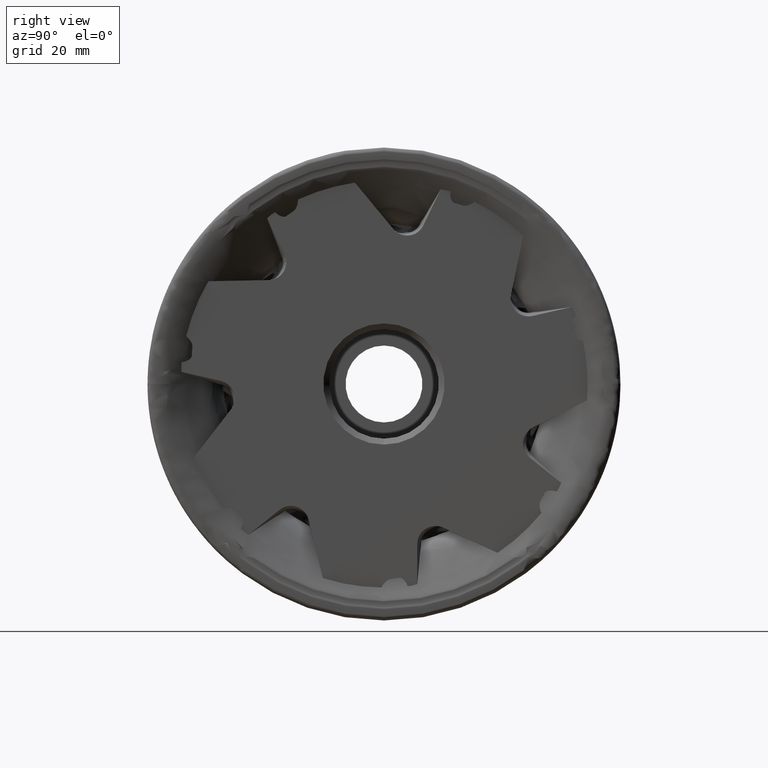
[diagram: clean part render]
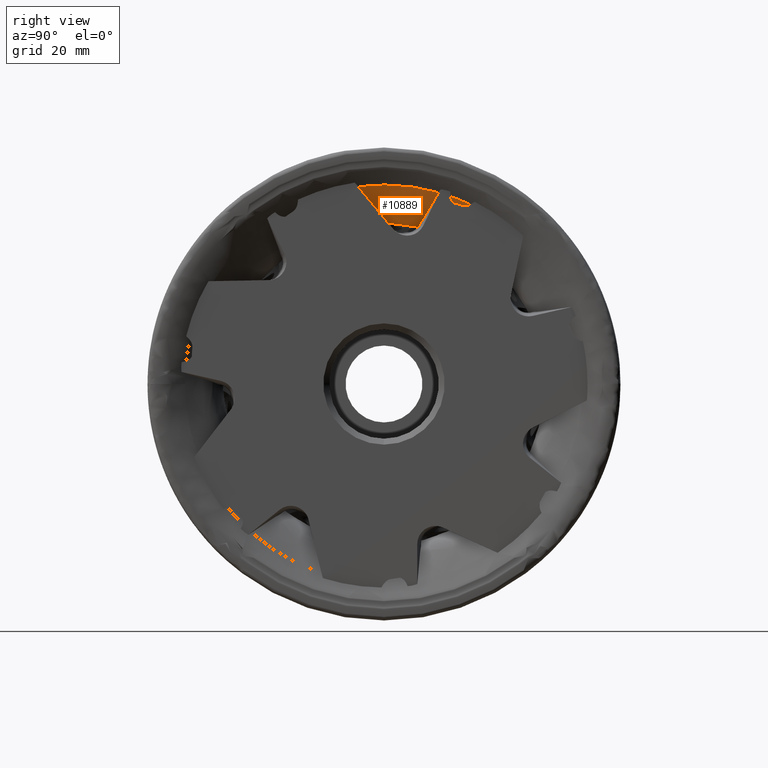
[diagram: same view with one face highlighted and labeled with its STEP entity id]
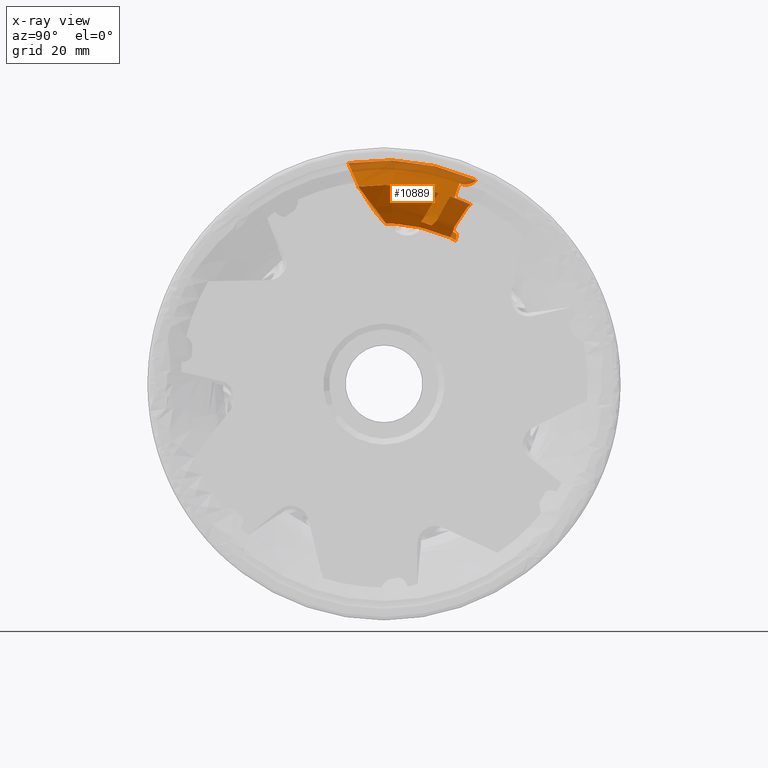
[diagram: x-ray of the same camera — body ghosted, the highlighted face saturated]
A machine part, right view. The second image highlights one B-rep face of the part: STEP entity #10889.
The next image is the same camera in x-ray: the body ghosted, the highlighted face saturated — about 17% of this face is hidden behind the body in this view.
In plain terms, the highlighted face is a freeform B-spline surface patch.
Its self-contained STEP definition (entity closure, byte-faithful):
#7 = CARTESIAN_POINT ( 'NONE',  ( -13.29903948266707700, 12.71831545076527400, 33.84640909322023800 ) ) ;
#36 = VERTEX_POINT ( 'NONE', #19932 ) ;
#38 = CARTESIAN_POINT ( 'NONE',  ( -11.51226986513791500, 11.61756674351385700, 30.63490721410897100 ) ) ;
#163 = CARTESIAN_POINT ( 'NONE',  ( -5.579468918698819600, 11.89452527981102400, 24.39696006079322600 ) ) ;
#379 = CARTESIAN_POINT ( 'NONE',  ( -4.956373608204056100, 11.39300173909383700, 25.10238271059176200 ) ) ;
#389 = EDGE_CURVE ( 'NONE', #3382, #22306, #17098, .T. ) ;
#532 = CARTESIAN_POINT ( 'NONE',  ( -8.662805670283969300, -1.106378812042005500, 28.62767894255090100 ) ) ;
#569 = CARTESIAN_POINT ( 'NONE',  ( -7.942572301717812700, 12.29154893616282100, 25.20709772480444500 ) ) ;
#579 = CARTESIAN_POINT ( 'NONE',  ( -1.080591375859053500, -4.131981254664321300, 33.02422606513071200 ) ) ;
#608 = CARTESIAN_POINT ( 'NONE',  ( -14.00775086464723200, 9.839354901800391000, 37.35013511798567300 ) ) ;
#678 = CARTESIAN_POINT ( 'NONE',  ( -3.348631760510833600, -1.000528280852973200, 28.98960402561296200 ) ) ;
#706 = CARTESIAN_POINT ( 'NONE',  ( -13.48010994594328700, 16.51392963510072300, 32.55135896568574300 ) ) ;
#709 = CARTESIAN_POINT ( 'NONE',  ( -11.03004040350667700, -3.244605510499318800, 31.67461465391301100 ) ) ;
#736 = CARTESIAN_POINT ( 'NONE',  ( -5.188429865553636100, 11.29886797995281500, 24.93144708878831800 ) ) ;
#768 = CARTESIAN_POINT ( 'NONE',  ( -2.406495260951443200, -2.303968378234504800, 30.66877173430467400 ) ) ;
#797 = CARTESIAN_POINT ( 'NONE',  ( -13.78156738659987300, 1.776827582193550400, 37.87895034995794000 ) ) ;
#818 = CARTESIAN_POINT ( 'NONE',  ( -9.064421493622436500, 11.03696253080603500, 26.79946011256979000 ) ) ;
#841 = CARTESIAN_POINT ( 'NONE',  ( -13.42740393896587900, 13.80203645855632500, 33.67545140271138100 ) ) ;
#844 = CARTESIAN_POINT ( 'NONE',  ( -6.571698064721328300, 0.2138108701023178100, 27.16974517820195700 ) ) ;
#870 = CARTESIAN_POINT ( 'NONE',  ( -13.78156738659987300, -6.090280843101703000, 36.56873551597072900 ) ) ;
#904 = ORIENTED_EDGE ( 'NONE', *, *, #15314, .T. ) ;
#924 = CIRCLE ( 'NONE', #10616, 33.64892737761818600 ) ;
#949 = CARTESIAN_POINT ( 'NONE',  ( -13.85332729811716300, 9.695789939050202500, 36.80516333777811200 ) ) ;
#981 = CARTESIAN_POINT ( 'NONE',  ( -10.79678171441597500, 11.52825564062410300, 29.20383773878717500 ) ) ;
#998 = B_SPLINE_CURVE_WITH_KNOTS ( 'NONE', 3,
 ( #13625, #13711, #21325, #15554, #9903, #15637, #23152, #2452, #2300, #23321, #6352, #23400, #6103, #7933, #19643, #6183, #21392, #23232, #17551, #709, #17736, #19564, #6012, #21580, #4420, #12063, #11979, #9983, #21244, #13885, #11806, #11886, #532, #4099, #4350, #15785 ),
 .UNSPECIFIED., .F., .F.,
 ( 4, 2, 2, 2, 2, 2, 2, 2, 2, 2, 2, 2, 2, 2, 2, 2, 2, 4 ),
 ( 0.007245565474090403000, 0.007451459210077992900, 0.007657352946065581900, 0.007863246682053171700, 0.008069140418040760700, 0.008892715361991137400, 0.01053986524989188600, 0.01136344019384226100, 0.01218701513779263400, 0.01383416502569336800, 0.01465773996964373500, 0.01548131491359410300, 0.01630488985754446900, 0.01712846480149483900, 0.01754025227347002000, 0.01795203974544520200, 0.01877561468939556400, 0.02042276457729628700 ),
 .UNSPECIFIED. ) ;
#1051 = CARTESIAN_POINT ( 'NONE',  ( -11.34429001208877400, 1.554938727711659100, 33.14865632123023400 ) ) ;
#1080 = CARTESIAN_POINT ( 'NONE',  ( -11.51226986513791500, 11.61756674351385700, 30.63490721410897100 ) ) ;
#1115 = EDGE_CURVE ( 'NONE', #12506, #2226, #8825, .T. ) ;
#1132 = CARTESIAN_POINT ( 'NONE',  ( -12.60746518858596800, 9.079173698957317700, 34.46449160540677800 ) ) ;
#1133 = CARTESIAN_POINT ( 'NONE',  ( -12.93414359032963600, 12.50146395473044500, 33.18782567788587600 ) ) ;
#1204 = CARTESIAN_POINT ( 'NONE',  ( -10.98671508597217400, 1.522043032233920200, 32.44737588849956500 ) ) ;
#1231 = CARTESIAN_POINT ( 'NONE',  ( -8.359564462136583900, 10.70896028055437200, 26.29390486569510400 ) ) ;
#1236 = CARTESIAN_POINT ( 'NONE',  ( -3.007828385439864400, 7.112768919603510700, 28.70328679061903200 ) ) ;
#1266 = CARTESIAN_POINT ( 'NONE',  ( -13.95905392122158700, 15.28960746281063300, 34.15576820459121200 ) ) ;
#1291 = CARTESIAN_POINT ( 'NONE',  ( -10.98671508597217500, -5.216977502199142700, 31.32503662565570900 ) ) ;
#1316 = B_SPLINE_CURVE_WITH_KNOTS ( 'NONE', 3,
 ( #22284, #5056, #9129, #10887, #12769, #1431, #3420, #24365, #7155, #1266, #22363, #3093, #7238, #24121 ),
 .UNSPECIFIED., .F., .F.,
 ( 4, 2, 2, 2, 2, 2, 4 ),
 ( 0.0000000000000000000, 0.0004849589981801466800, 0.0009699179963602933600, 0.001212397495450362900, 0.001454876994540432100, 0.001697356493630501600, 0.001939835992720571100 ),
 .UNSPECIFIED. ) ;
#1328 = CARTESIAN_POINT ( 'NONE',  ( -2.650364379913501300, 7.490021410845869800, 29.34982554808851100 ) ) ;
#1349 = CARTESIAN_POINT ( 'NONE',  ( -2.354947605403581200, 12.89336995332464900, 28.02541328103530600 ) ) ;
#1431 = CARTESIAN_POINT ( 'NONE',  ( -13.76982027576854500, 14.91095066201480900, 33.91743453871410500 ) ) ;
#1536 = CARTESIAN_POINT ( 'NONE',  ( -2.759157467545615600, 9.393436917631696300, 28.57022574285750600 ) ) ;
#1611 = CARTESIAN_POINT ( 'NONE',  ( -2.831764131656452600, 13.55282474801805200, 26.71459023502580300 ) ) ;
#1696 = CARTESIAN_POINT ( 'NONE',  ( -2.831764131656453000, 7.805659171989441700, 29.63023772070705400 ) ) ;
#1747 = EDGE_CURVE ( 'NONE', #2146, #2069, #7204, .T. ) ;
#1994 = B_SPLINE_CURVE_WITH_KNOTS ( 'NONE', 3,
 ( #10921, #14657, #24334, #9101 ),
 .UNSPECIFIED., .F., .F.,
 ( 4, 4 ),
 ( 0.0009457401229643813300, 0.001189617149983316100 ),
 .UNSPECIFIED. ) ;
#2069 = VERTEX_POINT ( 'NONE', #12732 ) ;
#2104 = DIRECTION ( 'NONE',  ( 1.000000000000000000, -0.0000000000000000000, -0.0000000000000000000 ) ) ;
#2146 = VERTEX_POINT ( 'NONE', #11307 ) ;
#2226 = VERTEX_POINT ( 'NONE', #7656 ) ;
#2247 = ORIENTED_EDGE ( 'NONE', *, *, #23288, .F. ) ;
#2259 = ORIENTED_EDGE ( 'NONE', *, *, #5788, .F. ) ;
#2300 = CARTESIAN_POINT ( 'NONE',  ( -13.79487997543303400, -5.766244795109183300, 36.64705573400154000 ) ) ;
#2319 = CARTESIAN_POINT ( 'NONE',  ( -4.498900640578700200, 11.56809303582678100, 25.46083002112213100 ) ) ;
#2449 = CARTESIAN_POINT ( 'NONE',  ( -13.85332729811716300, 16.83462458995022400, 33.18349539986322600 ) ) ;
#2452 = CARTESIAN_POINT ( 'NONE',  ( -13.82687424963947200, -5.787498116794313100, 36.70583610443524200 ) ) ;
#2524 = EDGE_CURVE ( 'NONE', #8162, #3382, #9906, .T. ) ;
#2545 = CARTESIAN_POINT ( 'NONE',  ( -13.48010994594328700, -5.996358579194621000, 36.00478476946788900 ) ) ;
#2586 = CARTESIAN_POINT ( 'NONE',  ( -6.077300360858175500, 12.14649027122292300, 24.18970565488379200 ) ) ;
#2613 = CARTESIAN_POINT ( 'NONE',  ( -12.74847767064473600, 15.88570015947112200, 31.31302722842453800 ) ) ;
#2632 = CARTESIAN_POINT ( 'NONE',  ( -4.844117706239444500, 11.44078260278653900, 25.19332833241203000 ) ) ;
#2660 = CARTESIAN_POINT ( 'NONE',  ( -4.608455337904087100, -0.1880762208111330100, 27.86969224679861800 ) ) ;
#2686 = CARTESIAN_POINT ( 'NONE',  ( -13.85332729811716300, -6.112805844400890400, 36.70398557031591500 ) ) ;
#2714 = CARTESIAN_POINT ( 'NONE',  ( -10.39979909477249500, 11.48657807512616800, 28.37945188364407700 ) ) ;
#2742 = CARTESIAN_POINT ( 'NONE',  ( -4.029632097317712400, 6.391108875473963600, 27.59588184236831400 ) ) ;
#2781 = CARTESIAN_POINT ( 'NONE',  ( -12.89776599457475600, 1.696439127102282100, 36.16520483540835300 ) ) ;
#2869 = ORIENTED_EDGE ( 'NONE', *, *, #4755, .F. ) ;
#2871 = CARTESIAN_POINT ( 'NONE',  ( -12.60746518858596800, -5.724054089269372100, 34.36974836828670700 ) ) ;
#2935 = CARTESIAN_POINT ( 'NONE',  ( -10.21002986192549300, 1.448539622273513600, 30.88040785831760000 ) ) ;
#2936 = CARTESIAN_POINT ( 'NONE',  ( -11.81272623462469400, 11.79416377279176100, 31.18253511384603600 ) ) ;
#3018 = CARTESIAN_POINT ( 'NONE',  ( -12.06602744216593900, -5.556398772388643400, 33.36307181283655900 ) ) ;
#3043 = CARTESIAN_POINT ( 'NONE',  ( -3.205003149849044800, 11.97662806346744100, 26.66530152915977300 ) ) ;
#3093 = CARTESIAN_POINT ( 'NONE',  ( -14.00668542572817000, 15.47285641691684800, 34.31487127164674400 ) ) ;
#3112 = CARTESIAN_POINT ( 'NONE',  ( -10.62600130836420400, 1.489471874968117100, 31.75301405999347900 ) ) ;
#3146 = CARTESIAN_POINT ( 'NONE',  ( -3.714738797407767500, 6.564095638659409800, 27.83455414082019200 ) ) ;
#3191 = CARTESIAN_POINT ( 'NONE',  ( -10.62600130836420200, 14.06005999508777800, 27.71442473670129300 ) ) ;
#3217 = CARTESIAN_POINT ( 'NONE',  ( -3.276086260277690300, 6.864285622991854300, 28.28999269000414800 ) ) ;
#3264 = CARTESIAN_POINT ( 'NONE',  ( -14.00512252077037100, 15.58733674068017000, 34.43280270238658100 ) ) ;
#3269 = CARTESIAN_POINT ( 'NONE',  ( -3.348710114047073600, 8.860835313870401500, 27.62901197764223600 ) ) ;
#3343 = CARTESIAN_POINT ( 'NONE',  ( -2.831764131656452600, -4.921154367605097900, 29.54878389656718300 ) ) ;
#3365 = CARTESIAN_POINT ( 'NONE',  ( -13.33954224681119200, 12.72544310965584700, 33.92583707100696000 ) ) ;
#3382 = VERTEX_POINT ( 'NONE', #13473 ) ;
#3420 = CARTESIAN_POINT ( 'NONE',  ( -13.80037303841697700, 14.97768061957235000, 33.95172806542181100 ) ) ;
#3435 = CARTESIAN_POINT ( 'NONE',  ( -1.228470252466020000, 8.600244674492579100, 32.64647975867381300 ) ) ;
#3502 = CARTESIAN_POINT ( 'NONE',  ( -4.556803514454626800, 1.340770707570210700, 28.58295738522459600 ) ) ;
#3570 = CARTESIAN_POINT ( 'NONE',  ( -0.8917096937156467900, 8.767994426409838800, 33.28325686069417300 ) ) ;
#3634 = CARTESIAN_POINT ( 'NONE',  ( -11.53435466547045300, 11.61901170428394900, 30.67952944524743200 ) ) ;
#3745 = VERTEX_POINT ( 'NONE', #3634 ) ;
#3797 = CARTESIAN_POINT ( 'NONE',  ( -13.38099165892731300, 13.52635451863147900, 33.69931877860636100 ) ) ;
#3957 = CARTESIAN_POINT ( 'NONE',  ( -6.635633053612658600, 12.12565553355700800, 24.33657914871647100 ) ) ;
#4099 = CARTESIAN_POINT ( 'NONE',  ( -8.093405834065986700, -0.7204062628972112100, 28.15639523447565300 ) ) ;
#4109 = CARTESIAN_POINT ( 'NONE',  ( -5.533352969990662700, 11.66633604019381000, 24.52812765579769300 ) ) ;
#4209 = B_SPLINE_CURVE_WITH_KNOTS ( 'NONE', 3,
 ( #21676, #6797, #20104, #818, #8531, #12339, #10411, #12250, #10498, #4535, #14417, #12418, #16163, #2714, #4692, #23832, #981, #4770, #21754, #1080 ),
 .UNSPECIFIED., .F., .F.,
 ( 4, 2, 2, 2, 2, 2, 2, 2, 2, 4 ),
 ( 0.001166061730128238400, 0.001856744242314437600, 0.002202085498407536500, 0.002547426754500634900, 0.002892768010593733800, 0.003238109266686832600, 0.003928791778873035600, 0.004619474291059239400, 0.005310156803245443200, 0.006691521827617853300 ),
 .UNSPECIFIED. ) ;
#4212 = VERTEX_POINT ( 'NONE', #24259 ) ;
#4348 = CARTESIAN_POINT ( 'NONE',  ( -13.78156738659987300, 16.77259089373732000, 33.06121795542611600 ) ) ;
#4350 = CARTESIAN_POINT ( 'NONE',  ( -7.720673714808456500, -0.4478538191778312900, 27.84488654698380800 ) ) ;
#4392 = CARTESIAN_POINT ( 'NONE',  ( -7.700933069110591100, 12.30647144898958500, 24.98707181734089000 ) ) ;
#4419 = CARTESIAN_POINT ( 'NONE',  ( -13.12685224262685300, -5.886205417600477200, 35.34337654604469500 ) ) ;
#4420 = CARTESIAN_POINT ( 'NONE',  ( -10.22009400948893400, -2.242485861974493000, 30.19067560583255300 ) ) ;
#4477 = CARTESIAN_POINT ( 'NONE',  ( -1.842238332982905500, -3.088742023813180200, 31.67943801847496100 ) ) ;
#4505 = CARTESIAN_POINT ( 'NONE',  ( -13.12685224262685300, 16.21056859762689200, 31.95339020566243000 ) ) ;
#4535 = CARTESIAN_POINT ( 'NONE',  ( -9.826830571288875000, 11.37204732647240500, 27.39928155592653900 ) ) ;
#4573 = CARTESIAN_POINT ( 'NONE',  ( -4.772192449336503600, -0.08883634331100223600, 27.73182348400974100 ) ) ;
#4601 = CARTESIAN_POINT ( 'NONE',  ( -13.25126954489632400, 9.397921750783451600, 35.67445739311534000 ) ) ;
#4650 = CARTESIAN_POINT ( 'NONE',  ( -1.653116564667238600, -3.349988388245192600, 32.01602253961191000 ) ) ;
#4675 = CARTESIAN_POINT ( 'NONE',  ( -13.94289759349112500, 1.791736031799626000, 38.19677320912705200 ) ) ;
#4692 = CARTESIAN_POINT ( 'NONE',  ( -10.49754608163520700, 11.49578277041827300, 28.58651323639792700 ) ) ;
#4721 = EDGE_CURVE ( 'NONE', #36, #8061, #1994, .T. ) ;
#4736 = VERTEX_POINT ( 'NONE', #1231 ) ;
#4740 = CARTESIAN_POINT ( 'NONE',  ( -12.39729699709477400, 15.58520810936895500, 30.72071366010098400 ) ) ;
#4755 = EDGE_CURVE ( 'NONE', #4736, #17163, #13681, .T. ) ;
#4770 = CARTESIAN_POINT ( 'NONE',  ( -11.10399492580478900, 11.56698296932211500, 29.81684157313751300 ) ) ;
#4833 = CARTESIAN_POINT ( 'NONE',  ( -9.733681189743663300, -4.843901157214973300, 29.08492150806730300 ) ) ;
#4921 = EDGE_CURVE ( 'NONE', #9896, #18463, #18601, .T. ) ;
#4925 = CARTESIAN_POINT ( 'NONE',  ( -12.26163556796358200, 8.909473213927899600, 33.82030953161282800 ) ) ;
#4926 = CARTESIAN_POINT ( 'NONE',  ( -12.09121293067656000, 11.96941300332470300, 31.68544277702108000 ) ) ;
#4996 = CARTESIAN_POINT ( 'NONE',  ( -12.60746518858596800, 15.76400497223116100, 31.07314830125359600 ) ) ;
#5027 = CARTESIAN_POINT ( 'NONE',  ( -0.9074183495356028500, 9.243015393777882900, 32.32277047941691000 ) ) ;
#5036 = CARTESIAN_POINT ( 'NONE',  ( -4.429658966259710300, 8.082154252098607800, 26.82146037200225300 ) ) ;
#5056 = CARTESIAN_POINT ( 'NONE',  ( -13.48910722672612100, 14.09963622667044300, 33.68634054661790600 ) ) ;
#5073 = CARTESIAN_POINT ( 'NONE',  ( -12.13735485757317000, 8.848888004132520600, 33.59032842059559000 ) ) ;
#5074 = CARTESIAN_POINT ( 'NONE',  ( -12.65444901740118900, 12.32519661924607300, 32.68593029206014900 ) ) ;
#5094 = CARTESIAN_POINT ( 'NONE',  ( -3.997894840805774000, 8.352155058788884600, 27.08670574344929700 ) ) ;
#5143 = CARTESIAN_POINT ( 'NONE',  ( -2.844487578063529500, 12.35353108689964200, 27.23139533028468100 ) ) ;
#5159 = VERTEX_POINT ( 'NONE', #19558 ) ;
#5169 = CARTESIAN_POINT ( 'NONE',  ( -2.320315197076611800, -5.077878665473621200, 30.48982578697059900 ) ) ;
#5184 = CARTESIAN_POINT ( 'NONE',  ( -1.252987154714722700, 10.80119798618615200, 31.13387583744122700 ) ) ;
#5249 = CARTESIAN_POINT ( 'NONE',  ( -3.405618901186980600, 12.98871809440510600, 25.60265391323980200 ) ) ;
#5254 = CARTESIAN_POINT ( 'NONE',  ( -0.9074183495356028500, 9.243015393777882900, 32.32277047941691000 ) ) ;
#5606 = CARTESIAN_POINT ( 'NONE',  ( -8.222665520740038800, 11.63274650125428700, 25.77183240126542400 ) ) ;
#5672 = CARTESIAN_POINT ( 'NONE',  ( -7.311189934745395500, -0.1861847682615490300, 27.57299664920612200 ) ) ;
#5770 = ORIENTED_EDGE ( 'NONE', *, *, #7751, .F. ) ;
#5788 = EDGE_CURVE ( 'NONE', #17163, #11446, #4209, .T. ) ;
#5816 = CARTESIAN_POINT ( 'NONE',  ( -1.002667082005013400, 11.03983774898809500, 31.55932639601550300 ) ) ;
#5939 = CARTESIAN_POINT ( 'NONE',  ( -7.376102755697062600, 12.23093636029955500, 24.75447825774257300 ) ) ;
#6012 = CARTESIAN_POINT ( 'NONE',  ( -10.56311775626718100, -2.681595964854238000, 30.82304592197781900 ) ) ;
#6103 = CARTESIAN_POINT ( 'NONE',  ( -12.86780408104942600, -5.078899827297810500, 34.97055940741753200 ) ) ;
#6183 = CARTESIAN_POINT ( 'NONE',  ( -12.11512071828702700, -4.402491621715848100, 33.63037018911040100 ) ) ;
#6200 = CARTESIAN_POINT ( 'NONE',  ( -3.564931198941575700, 11.75941190272120300, 26.21153765809409100 ) ) ;
#6259 = CARTESIAN_POINT ( 'NONE',  ( -13.90326517119815400, 1.787842798955861200, 38.11377608826525400 ) ) ;
#6262 = VERTEX_POINT ( 'NONE', #5606 ) ;
#6301 = B_SPLINE_CURVE_WITH_KNOTS ( 'NONE', 3,
 ( #21794, #21207, #9772, #23123 ),
 .UNSPECIFIED., .F., .F.,
 ( 4, 4 ),
 ( 0.0006033741538496009700, 0.001105498495583788700 ),
 .UNSPECIFIED. ) ;
#6303 = B_SPLINE_CURVE_WITH_KNOTS ( 'NONE', 3,
 ( #6568, #21541, #841, #19943 ),
 .UNSPECIFIED., .F., .F.,
 ( 4, 4 ),
 ( 0.0000000000000000000, 1.000000000000000000 ),
 .UNSPECIFIED. ) ;
#6351 = CARTESIAN_POINT ( 'NONE',  ( -13.61027607227344500, 1.761266094421450000, 37.54720582471627900 ) ) ;
#6352 = CARTESIAN_POINT ( 'NONE',  ( -13.50504463301885800, -5.569335442908365700, 36.12126700699477100 ) ) ;
#6437 = CARTESIAN_POINT ( 'NONE',  ( -14.00942381086908900, 9.811004460019262300, 37.24251700259620900 ) ) ;
#6486 = CARTESIAN_POINT ( 'NONE',  ( -2.568482493058821700, 12.66627562008335400, 27.68464494373650100 ) ) ;
#6491 = CARTESIAN_POINT ( 'NONE',  ( -4.095306484393264900, -0.4707652543711887100, 28.26750832138090900 ) ) ;
#6519 = CARTESIAN_POINT ( 'NONE',  ( -13.61027607227344500, -6.036942054454789800, 36.24846587569948800 ) ) ;
#6553 = ORIENTED_EDGE ( 'NONE', *, *, #17374, .T. ) ;
#6568 = CARTESIAN_POINT ( 'NONE',  ( -13.38099165892731300, 13.52635451863147900, 33.69931877860636100 ) ) ;
#6598 = CARTESIAN_POINT ( 'NONE',  ( -13.94289759349112700, -6.141381268346181700, 36.87556503396178400 ) ) ;
#6695 = CARTESIAN_POINT ( 'NONE',  ( -10.21002986192549100, 13.67367476802026400, 26.95280321455436500 ) ) ;
#6771 = CARTESIAN_POINT ( 'NONE',  ( -6.281620063084768700, 11.87999557030466500, 23.41720044015344400 ) ) ;
#6797 = CARTESIAN_POINT ( 'NONE',  ( -8.625424254178042800, 10.83569783067566500, 26.48616993806107400 ) ) ;
#6840 = CARTESIAN_POINT ( 'NONE',  ( -12.26163556796358200, 15.46935709143326000, 30.49235444126615800 ) ) ;
#6856 = CARTESIAN_POINT ( 'NONE',  ( -8.150092405132900500, 12.13983022364819900, 25.46986542491284300 ) ) ;
#6865 = ORIENTED_EDGE ( 'NONE', *, *, #20150, .T. ) ;
#6926 = CARTESIAN_POINT ( 'NONE',  ( -12.26163556796358200, -5.617064754392435700, 33.72733715754985400 ) ) ;
#6947 = CARTESIAN_POINT ( 'NONE',  ( -3.602341538566680200, 8.649856031285409600, 27.37527524033528800 ) ) ;
#6969 = CARTESIAN_POINT ( 'NONE',  ( -1.405629117553364800, 8.742164068791442600, 31.47345273571500700 ) ) ;
#7021 = CARTESIAN_POINT ( 'NONE',  ( -8.233906739843741100, 12.84592222612960700, 25.32118247247668600 ) ) ;
#7092 = CARTESIAN_POINT ( 'NONE',  ( -1.933168994865476200, -5.200372629964790300, 31.22533364041450100 ) ) ;
#7113 = CARTESIAN_POINT ( 'NONE',  ( -8.420132602591808200, 10.74261590020567100, 26.33566496890788900 ) ) ;
#7155 = CARTESIAN_POINT ( 'NONE',  ( -13.89902037902290600, 15.16773923224568100, 34.06651833411309100 ) ) ;
#7167 = CARTESIAN_POINT ( 'NONE',  ( -1.228470252466020000, 1.581889627668323200, 33.72320379650357600 ) ) ;
#7172 = CARTESIAN_POINT ( 'NONE',  ( -0.8969483879777032700, 9.283354565937855800, 32.33238883607900500 ) ) ;
#7188 = CARTESIAN_POINT ( 'NONE',  ( -2.572787824638654200, 9.566187700987816500, 28.89391478644736500 ) ) ;
#7204 = B_SPLINE_CURVE_WITH_KNOTS ( 'NONE', 3,
 ( #7774, #5939, #23004, #3957, #19000, #7631 ),
 .UNSPECIFIED., .F., .F.,
 ( 4, 2, 4 ),
 ( 5.012716579591775600E-005, 0.0009066471144085164100, 0.001763167063021115200 ),
 .UNSPECIFIED. ) ;
#7236 = B_SPLINE_CURVE_WITH_KNOTS ( 'NONE', 3,
 ( #13026, #22610, #14788, #18795 ),
 .UNSPECIFIED., .F., .F.,
 ( 4, 4 ),
 ( 0.0000000000000000000, 0.0008189180447484336600 ),
 .UNSPECIFIED. ) ;
#7238 = CARTESIAN_POINT ( 'NONE',  ( -14.01082781640940800, 15.53113795206510700, 34.37219524314377800 ) ) ;
#7259 = CARTESIAN_POINT ( 'NONE',  ( -0.8917096937156469000, -5.527868065454692100, 33.19176084987281400 ) ) ;
#7359 = CARTESIAN_POINT ( 'NONE',  ( -5.487154188199954600, 11.43806449757903800, 24.65912162858435900 ) ) ;
#7381 = CARTESIAN_POINT ( 'NONE',  ( -1.001549780618168600, 14.47990932900675000, 30.13704106268274100 ) ) ;
#7412 = EDGE_CURVE ( 'NONE', #18463, #8040, #18987, .T. ) ;
#7631 = CARTESIAN_POINT ( 'NONE',  ( -6.077300360858175500, 12.14649027122292300, 24.18970565488379200 ) ) ;
#7656 = CARTESIAN_POINT ( 'NONE',  ( -14.00512252077036000, -6.068949995303771800, 37.30617662751497200 ) ) ;
#7751 = EDGE_CURVE ( 'NONE', #3745, #9896, #9500, .T. ) ;
#7774 = CARTESIAN_POINT ( 'NONE',  ( -7.605357757110032100, 12.28424664616045800, 24.91863546423603600 ) ) ;
#7828 = CARTESIAN_POINT ( 'NONE',  ( -8.270239284460942000, 11.32891629507652100, 25.95275980219039300 ) ) ;
#7874 = ORIENTED_EDGE ( 'NONE', *, *, #18963, .F. ) ;
#7933 = CARTESIAN_POINT ( 'NONE',  ( -12.49127438884539000, -4.748553763710471100, 34.29623695327176600 ) ) ;
#8027 = EDGE_CURVE ( 'NONE', #2146, #22908, #19770, .T. ) ;
#8040 = VERTEX_POINT ( 'NONE', #11883 ) ;
#8043 = ORIENTED_EDGE ( 'NONE', *, *, #19224, .F. ) ;
#8061 = VERTEX_POINT ( 'NONE', #5816 ) ;
#8162 = VERTEX_POINT ( 'NONE', #17369 ) ;
#8171 = CARTESIAN_POINT ( 'NONE',  ( -14.00775086464722800, -6.203317782970849200, 37.24745921757009600 ) ) ;
#8221 = CARTESIAN_POINT ( 'NONE',  ( -4.524297963623726400, -0.2361914267473794200, 27.93705593895209600 ) ) ;
#8246 = CARTESIAN_POINT ( 'NONE',  ( -13.98648615023779700, -6.161947194261443000, 36.99905193461731300 ) ) ;
#8293 = CARTESIAN_POINT ( 'NONE',  ( -5.349788833105190400, 0.2538087316638887900, 27.25446893685057900 ) ) ;
#8319 = CARTESIAN_POINT ( 'NONE',  ( -13.54325116300515400, -6.016049104442999800, 36.12301537796176400 ) ) ;
#8400 = ORIENTED_EDGE ( 'NONE', *, *, #22844, .T. ) ;
#8405 = ORIENTED_EDGE ( 'NONE', *, *, #14726, .T. ) ;
#8412 = CARTESIAN_POINT ( 'NONE',  ( -13.03137263644047300, -5.856415302978833300, 35.16450354319733400 ) ) ;
#8483 = CARTESIAN_POINT ( 'NONE',  ( -2.684399893919427800, -1.910175749762721400, 30.16219833781025600 ) ) ;
#8509 = CARTESIAN_POINT ( 'NONE',  ( -13.25126954489632400, 1.728610696774160300, 36.85104813415824100 ) ) ;
#8531 = CARTESIAN_POINT ( 'NONE',  ( -9.153569258535604500, 11.07888133949301800, 26.85904049261576200 ) ) ;
#8579 = CARTESIAN_POINT ( 'NONE',  ( -12.13735485757316800, 15.36416408817926500, 30.28500372067684800 ) ) ;
#8652 = ORIENTED_EDGE ( 'NONE', *, *, #1747, .T. ) ;
#8656 = CARTESIAN_POINT ( 'NONE',  ( -6.281620063084768700, -4.313734824652230200, 25.90156873757580100 ) ) ;
#8679 = CARTESIAN_POINT ( 'NONE',  ( -4.282167005142834000, 6.896380560970718500, 27.27717683796333900 ) ) ;
#8754 = CARTESIAN_POINT ( 'NONE',  ( -11.66476838318761200, 8.613297005518058200, 32.69602633284172600 ) ) ;
#8770 = CARTESIAN_POINT ( 'NONE',  ( -1.880906931606006500, 10.20979397990459600, 30.06861429154399100 ) ) ;
#8825 = CIRCLE ( 'NONE', #21336, 37.79659996095996600 ) ;
#8829 = CARTESIAN_POINT ( 'NONE',  ( -12.39729699709477700, 1.651040546949329700, 35.19738410772173200 ) ) ;
#8894 = CARTESIAN_POINT ( 'NONE',  ( -12.06602744216593900, 8.813248234282307100, 33.45504005740870200 ) ) ;
#8910 = CARTESIAN_POINT ( 'NONE',  ( -2.005937353862485000, 10.09244683910024100, 29.85471843339891500 ) ) ;
#8982 = CARTESIAN_POINT ( 'NONE',  ( -3.405618901186981100, 1.375977791009784600, 29.33351268892378600 ) ) ;
#9002 = CARTESIAN_POINT ( 'NONE',  ( -4.213846828356281500, 8.211281894409513200, 26.96021670829343000 ) ) ;
#9004 = CARTESIAN_POINT ( 'NONE',  ( -13.33929933918352100, 12.73212258076915600, 33.92283842554565600 ) ) ;
#9073 = CARTESIAN_POINT ( 'NONE',  ( -1.000472314567191200, 1.602591168425996100, 34.16452553328090100 ) ) ;
#9080 = CARTESIAN_POINT ( 'NONE',  ( -0.9021853729422454300, 9.263186009176399300, 32.32757621895008500 ) ) ;
#9101 = CARTESIAN_POINT ( 'NONE',  ( -1.002667082005013400, 11.03983774898809500, 31.55932639601550300 ) ) ;
#9129 = CARTESIAN_POINT ( 'NONE',  ( -13.53066789653249600, 14.25491869836649200, 33.70651414451873500 ) ) ;
#9256 = CIRCLE ( 'NONE', #10184, 33.64892737761818600 ) ;
#9296 = CARTESIAN_POINT ( 'NONE',  ( -1.000472314567191200, -5.493065500671421300, 32.98279088286736300 ) ) ;
#9299 = CARTESIAN_POINT ( 'NONE',  ( -0.8917096937156346900, 9.303522244830706000, 32.33720438603444300 ) ) ;
#9418 = CARTESIAN_POINT ( 'NONE',  ( -2.777435404207471100, 12.43393817220876900, 27.34446404429780800 ) ) ;
#9500 = B_SPLINE_CURVE_WITH_KNOTS ( 'NONE', 3,
 ( #18129, #14290, #2936, #4926, #24062, #5074, #1133, #22228 ),
 .UNSPECIFIED., .F., .F.,
 ( 4, 2, 2, 4 ),
 ( 2.330580951672230600E-005, 0.0009247821321519213200, 0.001826258454787129300, 0.003629211100057525000 ),
 .UNSPECIFIED. ) ;
#9504 = CARTESIAN_POINT ( 'NONE',  ( -14.00512252077037100, 9.848764986647772400, 37.38585574642412000 ) ) ;
#9518 = CARTESIAN_POINT ( 'NONE',  ( -1.507250059753801700, 13.80098389493966600, 29.39303366708778900 ) ) ;
#9772 = CARTESIAN_POINT ( 'NONE',  ( -8.179650352257757700, 11.91797978400640000, 25.60197818394921400 ) ) ;
#9896 = VERTEX_POINT ( 'NONE', #15457 ) ;
#9903 = CARTESIAN_POINT ( 'NONE',  ( -13.97395835576847700, -5.898600079770239400, 37.00264140800573600 ) ) ;
#9906 = B_SPLINE_CURVE_WITH_KNOTS ( 'NONE', 3,
 ( #9299, #7172, #9080, #5254 ),
 .UNSPECIFIED., .F., .F.,
 ( 4, 4 ),
 ( 0.001806115409333672100, 0.001870233215359920000 ),
 .UNSPECIFIED. ) ;
#9983 = CARTESIAN_POINT ( 'NONE',  ( -9.562961771871117700, -1.633309529972680800, 29.33190404571836800 ) ) ;
#10054 = CARTESIAN_POINT ( 'NONE',  ( -13.94289759349112500, 9.741114674539156600, 36.97721577532050900 ) ) ;
#10111 = CARTESIAN_POINT ( 'NONE',  ( -6.960063066161407800, 0.02881056625041968100, 27.35120290201753300 ) ) ;
#10138 = CARTESIAN_POINT ( 'NONE',  ( -13.03137263644047300, 9.289117635812466700, 35.26143759292336500 ) ) ;
#10184 = AXIS2_PLACEMENT_3D ( 'NONE', #18821, #2104, #11637 ) ;
#10202 = CARTESIAN_POINT ( 'NONE',  ( -5.011523726360607600, 0.06416068193141265300, 27.52069975614361400 ) ) ;
#10233 = CARTESIAN_POINT ( 'NONE',  ( -13.98648615023779700, 9.773735193275104600, 37.10104307848887800 ) ) ;
#10309 = CARTESIAN_POINT ( 'NONE',  ( -12.89776599457475500, 16.01375380490681300, 31.56543960219303100 ) ) ;
#10382 = CARTESIAN_POINT ( 'NONE',  ( -13.90326517119815400, 9.719948371628053300, 36.89686861012848600 ) ) ;
#10411 = CARTESIAN_POINT ( 'NONE',  ( -9.424527157620298500, 11.20885013998773300, 27.03026041930972700 ) ) ;
#10438 = ORIENTED_EDGE ( 'NONE', *, *, #1115, .F. ) ;
#10474 = CARTESIAN_POINT ( 'NONE',  ( -12.51878453319904400, -5.696705769813063600, 34.20553698185501200 ) ) ;
#10498 = CARTESIAN_POINT ( 'NONE',  ( -9.677408062128282800, 11.31920683154851800, 27.23224568464525700 ) ) ;
#10554 = EDGE_CURVE ( 'NONE', #16011, #18876, #17755, .T. ) ;
#10558 = CARTESIAN_POINT ( 'NONE',  ( -12.51878453319904400, 9.035795327815805000, 34.29982755583203900 ) ) ;
#10603 = CARTESIAN_POINT ( 'NONE',  ( -4.247375928653578800, 6.278948744159627000, 27.44632937480213300 ) ) ;
#10616 = AXIS2_PLACEMENT_3D ( 'NONE', #23886, #10623, #16374 ) ;
#10623 = DIRECTION ( 'NONE',  ( 1.000000000000000000, -0.0000000000000000000, -0.0000000000000000000 ) ) ;
#10632 = CARTESIAN_POINT ( 'NONE',  ( -12.26163556796358200, 1.638767709353902100, 34.93574802632083000 ) ) ;
#10640 = EDGE_LOOP ( 'NONE', ( #10438, #11961, #16401, #8043, #23944, #17634, #5770, #2247, #2259, #2869, #904, #8400, #13351, #17280, #8652, #23560, #8405, #15919, #16148, #20689, #21456, #6865, #16798, #22325, #14915, #6553, #18754, #7874 ) ) ;
#10697 = CARTESIAN_POINT ( 'NONE',  ( -7.877096451678574400, 12.30094456341565500, 25.14437113410612300 ) ) ;
#10715 = CARTESIAN_POINT ( 'NONE',  ( -11.34429001208877400, 8.453720966535303900, 32.09027659852648600 ) ) ;
#10739 = CARTESIAN_POINT ( 'NONE',  ( -2.635579901167113700, 9.508138548941726500, 28.78676634089335500 ) ) ;
#10747 = CARTESIAN_POINT ( 'NONE',  ( -14.00512252077036900, 0.0000000000000000000, 0.0000000000000000000 ) ) ;
#10756 = EDGE_CURVE ( 'NONE', #11107, #22046, #24337, .T. ) ;
#10760 = CARTESIAN_POINT ( 'NONE',  ( -1.529637786259722600, 8.616910092395162500, 31.26082961361864000 ) ) ;
#10815 = CARTESIAN_POINT ( 'NONE',  ( -11.66476838318761200, -5.430337559484010000, 32.60614462469980900 ) ) ;
#10833 = CARTESIAN_POINT ( 'NONE',  ( -8.107544795978137500, 12.19549271787323600, 25.40381910029814000 ) ) ;
#10887 = CARTESIAN_POINT ( 'NONE',  ( -13.62622993743459300, 14.55627029350895500, 33.77504193101913200 ) ) ;
#10889 = ADVANCED_FACE ( 'NONE', ( #18671 ), #24030, .T. ) ;
#10901 = CARTESIAN_POINT ( 'NONE',  ( -3.405618901186980600, -4.716322092870017400, 28.31888046963308600 ) ) ;
#10921 = CARTESIAN_POINT ( 'NONE',  ( -0.8917096937156479000, 11.07765163256149400, 31.77319543218514800 ) ) ;
#11045 = CARTESIAN_POINT ( 'NONE',  ( -1.228470252466020000, 14.93244917504721200, 29.43403078941695100 ) ) ;
#11107 = VERTEX_POINT ( 'NONE', #19357 ) ;
#11116 = CARTESIAN_POINT ( 'NONE',  ( -0.8917096937156472300, 14.66798707960115100, 30.28366669835205700 ) ) ;
#11138 = CARTESIAN_POINT ( 'NONE',  ( -1.228470252466020000, -5.422108589397284500, 32.55673425456701900 ) ) ;
#11307 = CARTESIAN_POINT ( 'NONE',  ( -7.605357757110032100, 12.28424664616045800, 24.91863546423603600 ) ) ;
#11312 = B_SPLINE_CURVE_WITH_KNOTS ( 'NONE', 3,
 ( #17298, #19294, #7828, #17466 ),
 .UNSPECIFIED., .F., .F.,
 ( 4, 4 ),
 ( 0.0004507167326837530100, 0.001520567002797817300 ),
 .UNSPECIFIED. ) ;
#11406 = CARTESIAN_POINT ( 'NONE',  ( -13.25721367271168000, 12.70515085190189300, 33.76651951008558000 ) ) ;
#11438 = CARTESIAN_POINT ( 'NONE',  ( -14.00512252077036900, -6.209250463238568300, 37.28308164963853200 ) ) ;
#11446 = VERTEX_POINT ( 'NONE', #38 ) ;
#11553 = EDGE_CURVE ( 'NONE', #13222, #11107, #19898, .T. ) ;
#11604 = CARTESIAN_POINT ( 'NONE',  ( -5.663436982539379500, 12.06732455718492500, 24.27515253443616300 ) ) ;
#11616 = B_SPLINE_CURVE_WITH_KNOTS ( 'NONE', 3,
 ( #19688, #569, #18328, #10833, #6856, #18567 ),
 .UNSPECIFIED., .F., .F.,
 ( 4, 2, 4 ),
 ( 0.0003536232110534130900, 0.0006239763196225418000, 0.0008943294281916704000 ),
 .UNSPECIFIED. ) ;
#11637 = DIRECTION ( 'NONE',  ( -1.288840099202293000E-017, 1.000000000000000000, 0.0000000000000000000 ) ) ;
#11687 = CARTESIAN_POINT ( 'NONE',  ( -5.598832701091221300, 11.99034043495828300, 24.34188365365533400 ) ) ;
#11806 = CARTESIAN_POINT ( 'NONE',  ( -9.153389588208881400, -1.408717023553547800, 29.02030116392238000 ) ) ;
#11822 = CARTESIAN_POINT ( 'NONE',  ( -4.254217831881941700, 11.62531429450212700, 25.63221325226116700 ) ) ;
#11883 = CARTESIAN_POINT ( 'NONE',  ( -13.33905766142436100, 12.73880214045813600, 33.91983987852602000 ) ) ;
#11886 = CARTESIAN_POINT ( 'NONE',  ( -8.853618114228206400, -1.231746154750752200, 28.78628018489045100 ) ) ;
#11892 = CARTESIAN_POINT ( 'NONE',  ( -11.53435466547045300, 11.61901170428394900, 30.67952944524743200 ) ) ;
#11961 = ORIENTED_EDGE ( 'NONE', *, *, #19573, .F. ) ;
#11977 = CARTESIAN_POINT ( 'NONE',  ( -13.69475999382684800, 9.617257621442984600, 36.50705510781464400 ) ) ;
#11979 = CARTESIAN_POINT ( 'NONE',  ( -9.826781441273317000, -1.818067414936748800, 29.59198362034315700 ) ) ;
#12027 = CARTESIAN_POINT ( 'NONE',  ( -5.965999007794371400, 12.15458064981246600, 24.18184555020557600 ) ) ;
#12039 = CARTESIAN_POINT ( 'NONE',  ( -3.239858646929373500, -1.124433982192526200, 29.15131946937296100 ) ) ;
#12062 = CARTESIAN_POINT ( 'NONE',  ( -13.94289759349112700, 16.91332110786077800, 33.33861769119303600 ) ) ;
#12063 = CARTESIAN_POINT ( 'NONE',  ( -9.965693562491791700, -1.956748044010802700, 29.78669158891939300 ) ) ;
#12137 = CARTESIAN_POINT ( 'NONE',  ( -13.48010994594328700, 1.749425944503695500, 37.29479391071565400 ) ) ;
#12221 = CARTESIAN_POINT ( 'NONE',  ( -13.85332729811716300, 1.783399207481190200, 38.01904625486373100 ) ) ;
#12250 = CARTESIAN_POINT ( 'NONE',  ( -9.596891508226681500, 11.28650695808470100, 27.15853585214060200 ) ) ;
#12315 = CARTESIAN_POINT ( 'NONE',  ( -13.61027607227344500, 16.62569624244132900, 32.77166721673871300 ) ) ;
#12337 = CARTESIAN_POINT ( 'NONE',  ( -8.450959523493647700, 10.75659323092427200, 26.35826503444181800 ) ) ;
#12339 = CARTESIAN_POINT ( 'NONE',  ( -9.333768715947311300, 11.16507129184456000, 26.97385536678277500 ) ) ;
#12395 = CARTESIAN_POINT ( 'NONE',  ( -11.93839874747173900, 8.749721360771120600, 33.21389240769523400 ) ) ;
#12418 = CARTESIAN_POINT ( 'NONE',  ( -10.08471797004638000, 11.44111523016594800, 27.77289575818843700 ) ) ;
#12464 = CARTESIAN_POINT ( 'NONE',  ( -10.21002986192549300, 7.875261936328536500, 29.89444941736767400 ) ) ;
#12506 = VERTEX_POINT ( 'NONE', #3264 ) ;
#12513 = CARTESIAN_POINT ( 'NONE',  ( -4.138358009296044100, 6.334976538485690000, 27.52094117710514000 ) ) ;
#12551 = CARTESIAN_POINT ( 'NONE',  ( -11.66476838318761200, 14.95511170117649000, 29.47870192702040600 ) ) ;
#12568 = CARTESIAN_POINT ( 'NONE',  ( -3.002801686126575800, 9.167386203180374300, 28.13266239137018600 ) ) ;
#12578 = DIRECTION ( 'NONE',  ( -4.589628373368502600E-017, 1.000000000000000000, 0.0000000000000000000 ) ) ;
#12642 = CARTESIAN_POINT ( 'NONE',  ( -11.93839874747173700, -5.516347632036308300, 33.12258708045897700 ) ) ;
#12714 = CARTESIAN_POINT ( 'NONE',  ( -8.233906739843741100, -4.664471609748945400, 28.00754727294193500 ) ) ;
#12732 = CARTESIAN_POINT ( 'NONE',  ( -6.077300360858175500, 12.14649027122292300, 24.18970565488379200 ) ) ;
#12769 = CARTESIAN_POINT ( 'NONE',  ( -13.68094972165850500, 14.70386118476653400, 33.82419477377678900 ) ) ;
#12864 = CARTESIAN_POINT ( 'NONE',  ( -5.579468918698819600, 11.89452527981102400, 24.39696006079322600 ) ) ;
#12879 = CARTESIAN_POINT ( 'NONE',  ( -2.320315197076611800, 13.98444236943436900, 27.56537139015286500 ) ) ;
#13026 = CARTESIAN_POINT ( 'NONE',  ( -13.33905766142436100, 12.73880214045813600, 33.91983987852602000 ) ) ;
#13222 = VERTEX_POINT ( 'NONE', #16042 ) ;
#13322 = CARTESIAN_POINT ( 'NONE',  ( -14.00775086464722800, 17.08389383643375900, 33.67484136661271100 ) ) ;
#13351 = ORIENTED_EDGE ( 'NONE', *, *, #20140, .F. ) ;
#13473 = CARTESIAN_POINT ( 'NONE',  ( -0.9074183495356028500, 9.243015393777882900, 32.32277047941691000 ) ) ;
#13625 = CARTESIAN_POINT ( 'NONE',  ( -14.00512252077036000, -6.068949995303771800, 37.30617662751497200 ) ) ;
#13681 = B_SPLINE_CURVE_WITH_KNOTS ( 'NONE', 3,
 ( #22077, #18488, #7113, #22407 ),
 .UNSPECIFIED., .F., .F.,
 ( 4, 4 ),
 ( 0.0001435400879487184000, 0.0002648301040224882900 ),
 .UNSPECIFIED. ) ;
#13711 = CARTESIAN_POINT ( 'NONE',  ( -14.00976829992183800, -6.030794496434328500, 37.24771225486820500 ) ) ;
#13860 = CARTESIAN_POINT ( 'NONE',  ( -2.773639113977670200, -1.777781373196750700, 29.99234346326913000 ) ) ;
#13882 = CARTESIAN_POINT ( 'NONE',  ( -13.69475999382684600, -6.063294374674187600, 36.40669684290140400 ) ) ;
#13885 = CARTESIAN_POINT ( 'NONE',  ( -9.257369435078233600, -1.464985696180373800, 29.09671302205345400 ) ) ;
#13919 = CARTESIAN_POINT ( 'NONE',  ( -6.022179884200147300, 12.15297653212896000, 24.18264120247755100 ) ) ;
#13957 = CARTESIAN_POINT ( 'NONE',  ( -13.37916595303824100, -5.964895317698556600, 35.81586545396167800 ) ) ;
#14020 = CARTESIAN_POINT ( 'NONE',  ( -3.040988951264494300, -1.380414805554949900, 29.48259703398817100 ) ) ;
#14050 = CARTESIAN_POINT ( 'NONE',  ( -4.247375928653578800, 6.278948744159627000, 27.44632937480213300 ) ) ;
#14051 = CARTESIAN_POINT ( 'NONE',  ( -13.98648615023779700, 16.96995952415292000, 33.45026025360620300 ) ) ;
#14113 = CARTESIAN_POINT ( 'NONE',  ( -6.010360339775997900, 0.3565095886926205600, 27.05829405887721600 ) ) ;
#14138 = CARTESIAN_POINT ( 'NONE',  ( -13.12685224262685300, 1.717288974004545600, 36.60968820764424000 ) ) ;
#14211 = CARTESIAN_POINT ( 'NONE',  ( -6.281620063084768700, 6.842204345636759800, 25.97296869204710400 ) ) ;
#14259 = CARTESIAN_POINT ( 'NONE',  ( -2.981901211488041400, 12.19565670103441400, 27.00539305759282600 ) ) ;
#14289 = CARTESIAN_POINT ( 'NONE',  ( -10.62600130836420200, -5.105336115538164200, 30.65469244176378900 ) ) ;
#14290 = CARTESIAN_POINT ( 'NONE',  ( -11.67355194136104900, 11.70659743669972900, 30.93102249720161400 ) ) ;
#14388 = CARTESIAN_POINT ( 'NONE',  ( -12.60746518858596800, 1.669981639566205900, 35.60117607605828000 ) ) ;
#14417 = CARTESIAN_POINT ( 'NONE',  ( -9.895569409577287700, 11.39249563497177700, 27.49100649148760700 ) ) ;
#14466 = CARTESIAN_POINT ( 'NONE',  ( -10.62600130836420400, 8.097797935107818600, 30.73919480016723300 ) ) ;
#14481 = CARTESIAN_POINT ( 'NONE',  ( -3.128014551896416000, 9.053354972354666700, 27.91684311233753500 ) ) ;
#14498 = CARTESIAN_POINT ( 'NONE',  ( -3.428969122741852600, 6.741934089542947800, 28.09444934304636400 ) ) ;
#14540 = CARTESIAN_POINT ( 'NONE',  ( -12.06602744216593900, 15.30228340082194700, 30.16302787896501100 ) ) ;
#14578 = CARTESIAN_POINT ( 'NONE',  ( -2.890671392361897400, 7.238721085791451200, 28.91998248059918500 ) ) ;
#14646 = CARTESIAN_POINT ( 'NONE',  ( -1.002667082005013400, 11.03983774898809500, 31.55932639601550300 ) ) ;
#14657 = CARTESIAN_POINT ( 'NONE',  ( -0.9284712054948771600, 11.06486439371742100, 31.70182231523463300 ) ) ;
#14726 = EDGE_CURVE ( 'NONE', #20779, #13222, #20647, .T. ) ;
#14730 = CARTESIAN_POINT ( 'NONE',  ( -1.504536570031928200, 10.56357637297756500, 30.70858365998900700 ) ) ;
#14788 = CARTESIAN_POINT ( 'NONE',  ( -13.34395153310526200, 13.25389491302545900, 33.73293371969295900 ) ) ;
#14801 = CARTESIAN_POINT ( 'NONE',  ( -13.33905766142436100, 12.73880214045813600, 33.91983987852602000 ) ) ;
#14915 = ORIENTED_EDGE ( 'NONE', *, *, #2524, .F. ) ;
#14923 = CARTESIAN_POINT ( 'NONE',  ( -13.33978638580618500, 12.71876372904654100, 33.92883581755078400 ) ) ;
#14946 = CARTESIAN_POINT ( 'NONE',  ( -1.933168994865476200, 14.32178989187079100, 28.23033245887826900 ) ) ;
#15037 = CARTESIAN_POINT ( 'NONE',  ( -2.639191520358165700, 12.59002522167818800, 27.57112577139095300 ) ) ;
#15168 = CARTESIAN_POINT ( 'NONE',  ( -14.00512252077036900, 17.10023239644393200, 33.70704704652205700 ) ) ;
#15198 = CARTESIAN_POINT ( 'NONE',  ( -7.605357757110032100, 12.28424664616045800, 24.91863546423603600 ) ) ;
#15314 = EDGE_CURVE ( 'NONE', #4736, #6262, #11312, .T. ) ;
#15394 = CARTESIAN_POINT ( 'NONE',  ( -5.579468918698819600, 11.89452527981102400, 24.39696006079322600 ) ) ;
#15457 = CARTESIAN_POINT ( 'NONE',  ( -13.21417682616264400, 12.67801729105655700, 33.68943048509253700 ) ) ;
#15554 = CARTESIAN_POINT ( 'NONE',  ( -13.99014396501236700, -5.928970700495129100, 37.06535696872307300 ) ) ;
#15637 = CARTESIAN_POINT ( 'NONE',  ( -13.92594489814758800, -5.848103648561451700, 36.88188131860182000 ) ) ;
#15675 = CARTESIAN_POINT ( 'NONE',  ( -1.223486073381508100, 14.09967474773391100, 29.85069615550986900 ) ) ;
#15700 = CARTESIAN_POINT ( 'NONE',  ( -13.54325116300515400, 16.56815720407201900, 32.65824939712304300 ) ) ;
#15783 = CARTESIAN_POINT ( 'NONE',  ( -13.37916595303824100, 16.42728003275046700, 32.38055998732858900 ) ) ;
#15785 = CARTESIAN_POINT ( 'NONE',  ( -7.311189934745395500, -0.1861847682615490300, 27.57299664920612200 ) ) ;
#15849 = CARTESIAN_POINT ( 'NONE',  ( -0.8917096937156455700, -4.393316197648973200, 33.36089157159470600 ) ) ;
#15881 = CARTESIAN_POINT ( 'NONE',  ( -13.78156738659987300, 9.660062044768421800, 36.66954045475136300 ) ) ;
#15919 = ORIENTED_EDGE ( 'NONE', *, *, #11553, .T. ) ;
#15940 = CARTESIAN_POINT ( 'NONE',  ( -3.610146254482489600, -0.7719493180042875700, 28.68464577537684000 ) ) ;
#15962 = CARTESIAN_POINT ( 'NONE',  ( -13.03137263644047300, 16.12852683007978500, 31.79167394038726600 ) ) ;
#16011 = VERTEX_POINT ( 'NONE', #18248 ) ;
#16010 = CARTESIAN_POINT ( 'NONE',  ( -7.311189934745395500, -0.1861847682615490300, 27.57299664920612200 ) ) ;
#16033 = B_SPLINE_CURVE_WITH_KNOTS ( 'NONE', 3,
 ( #163, #11687, #11604, #19443, #17844, #12027, #13919, #2586 ),
 .UNSPECIFIED., .F., .F.,
 ( 4, 2, 2, 4 ),
 ( 0.0000000000000000000, 0.0003318883071226662400, 0.0004978324606839993300, 0.0006637766142453325900 ),
 .UNSPECIFIED. ) ;
#16035 = CARTESIAN_POINT ( 'NONE',  ( -12.89776599457475500, -5.814740169963049400, 34.91426764174900700 ) ) ;
#16042 = CARTESIAN_POINT ( 'NONE',  ( -5.440940783132236700, 11.20976151432775400, 24.79005533409023000 ) ) ;
#16044 = CARTESIAN_POINT ( 'NONE',  ( -11.51226986513791500, 11.61756674351385700, 30.63490721410897100 ) ) ;
#16100 = CARTESIAN_POINT ( 'NONE',  ( -5.891629876959949100, 0.3646888831904167600, 27.06133427548822800 ) ) ;
#16132 = CARTESIAN_POINT ( 'NONE',  ( -12.74847767064473700, 9.149263231739439600, 34.73055107230229800 ) ) ;
#16148 = ORIENTED_EDGE ( 'NONE', *, *, #10756, .T. ) ;
#16163 = CARTESIAN_POINT ( 'NONE',  ( -10.19258238058212700, 11.45859342671721100, 27.97316111595284800 ) ) ;
#16229 = CARTESIAN_POINT ( 'NONE',  ( -9.733681189743663300, 13.34006994631312400, 26.29521955372834800 ) ) ;
#16300 = CARTESIAN_POINT ( 'NONE',  ( -12.51878453319904400, 1.662002820594060700, 35.43108118855999300 ) ) ;
#16374 = DIRECTION ( 'NONE',  ( -1.288840099202293000E-017, 1.000000000000000000, 0.0000000000000000000 ) ) ;
#16384 = CARTESIAN_POINT ( 'NONE',  ( -9.733681189743663300, 7.683124460577659000, 29.16509665469712700 ) ) ;
#16401 = ORIENTED_EDGE ( 'NONE', *, *, #16904, .F. ) ;
#16422 = CARTESIAN_POINT ( 'NONE',  ( -2.149442379785152700, 7.990575321106540200, 30.19748786767604200 ) ) ;
#16478 = CARTESIAN_POINT ( 'NONE',  ( -12.39729699709477700, 8.976196836312695400, 34.07359202182745200 ) ) ;
#16497 = CARTESIAN_POINT ( 'NONE',  ( -4.429658966259710300, 8.082154252098607800, 26.82146037200225300 ) ) ;
#16510 = CARTESIAN_POINT ( 'NONE',  ( -3.818078365172953100, 6.505485147526287400, 27.75240568973071100 ) ) ;
#16560 = CARTESIAN_POINT ( 'NONE',  ( -4.556803514454626800, 7.289355676788125600, 27.67035259611124300 ) ) ;
#16643 = CARTESIAN_POINT ( 'NONE',  ( -3.697264471556617000, 8.575103220736279400, 27.30058909981250900 ) ) ;
#16795 = CARTESIAN_POINT ( 'NONE',  ( -1.564563055311141100, 1.550929371439571500, 33.06318364583528800 ) ) ;
#16798 = ORIENTED_EDGE ( 'NONE', *, *, #21578, .F. ) ;
#16868 = CARTESIAN_POINT ( 'NONE',  ( -0.8917096937156467900, 1.612744748963754100, 34.38098264871423700 ) ) ;
#16904 = EDGE_CURVE ( 'NONE', #24204, #4212, #6303, .T. ) ;
#16941 = B_SPLINE_CURVE_WITH_KNOTS ( 'NONE', 3,
 ( #20175, #8679, #24076, #18397 ),
 .UNSPECIFIED., .F., .F.,
 ( 4, 4 ),
 ( 0.0001196187626698517800, 0.002036699322061271600 ),
 .UNSPECIFIED. ) ;
#17062 = CARTESIAN_POINT ( 'NONE',  ( -13.33978638580618500, 12.71876372904654100, 33.92883581755078400 ) ) ;
#17098 = B_SPLINE_CURVE_WITH_KNOTS ( 'NONE', 3,
 ( #5027, #18338, #22183, #6969, #10760, #24021, #16422, #24093, #1328, #14578, #1236, #3217, #14498, #3146, #16510, #2742, #12513, #10603 ),
 .UNSPECIFIED., .F., .F.,
 ( 4, 2, 2, 2, 2, 2, 2, 2, 4 ),
 ( 0.0008241264063725458600, 0.001652650928641257700, 0.002481175450909969500, 0.004138224495447403800, 0.004966749017716120600, 0.005795273539984837300, 0.006623798062253554100, 0.007038060323387912400, 0.007452322584522269900 ),
 .UNSPECIFIED. ) ;
#17163 = VERTEX_POINT ( 'NONE', #12337 ) ;
#17280 = ORIENTED_EDGE ( 'NONE', *, *, #8027, .F. ) ;
#17298 = CARTESIAN_POINT ( 'NONE',  ( -8.359564462136583900, 10.70896028055437200, 26.29390486569510400 ) ) ;
#17369 = CARTESIAN_POINT ( 'NONE',  ( -0.8917096937156346900, 9.303522244830706000, 32.33720438603444300 ) ) ;
#17374 = EDGE_CURVE ( 'NONE', #8162, #16011, #9256, .T. ) ;
#17421 = CARTESIAN_POINT ( 'NONE',  ( -5.440940783132236700, 11.20976151432775400, 24.79005533409023000 ) ) ;
#17466 = CARTESIAN_POINT ( 'NONE',  ( -8.222665520740038800, 11.63274650125428700, 25.77183240126542400 ) ) ;
#17551 = CARTESIAN_POINT ( 'NONE',  ( -11.38656958414968300, -3.650398764350960300, 32.31847436986022600 ) ) ;
#17575 = CARTESIAN_POINT ( 'NONE',  ( -3.786495584156161200, 11.72065532672927000, 26.00682758960727300 ) ) ;
#17615 = CARTESIAN_POINT ( 'NONE',  ( -4.269152518722632000, -0.3785347614536316900, 28.13701641133267400 ) ) ;
#17631 = VERTEX_POINT ( 'NONE', #5036 ) ;
#17634 = ORIENTED_EDGE ( 'NONE', *, *, #4921, .F. ) ;
#17644 = CARTESIAN_POINT ( 'NONE',  ( -13.54325116300515600, 1.755170616920374000, 37.41726058301906500 ) ) ;
#17734 = CARTESIAN_POINT ( 'NONE',  ( -13.03137263644047300, 1.708597766045491400, 36.42440639523800900 ) ) ;
#17736 = CARTESIAN_POINT ( 'NONE',  ( -10.91051382864852700, -3.107283881468522000, 31.46150952364221000 ) ) ;
#17755 = B_SPLINE_CURVE_WITH_KNOTS ( 'NONE', 3,
 ( #15849, #579, #19614, #4650, #4477, #23702, #768, #8483, #13860, #21786, #14020, #12039, #678, #15940, #19703, #6491, #17615, #8221, #2660, #4573, #21550, #10202, #17856, #19801, #8293, #23626, #19539, #16100, #14113, #21697, #844, #10111, #21628, #16010 ),
 .UNSPECIFIED., .F., .F.,
 ( 4, 2, 2, 2, 2, 2, 2, 2, 2, 2, 2, 2, 2, 2, 2, 2, 4 ),
 ( 0.002179920607215236500, 0.003578308352898319600, 0.004976696098581402700, 0.006375083844264485700, 0.007074277717106026800, 0.007773471589947568800, 0.008472665462789109900, 0.009171859335630651000, 0.009871053208472193800, 0.01022065014489296900, 0.01057024708131374200, 0.01091984401773451800, 0.01126944095415529200, 0.01161903789057606600, 0.01196863482699684100, 0.01266782869983838900, 0.01336702257267993700 ),
 .UNSPECIFIED. ) ;
#17800 = CARTESIAN_POINT ( 'NONE',  ( -13.69475999382684800, 1.768954332554778700, 37.71110602158935900 ) ) ;
#17844 = CARTESIAN_POINT ( 'NONE',  ( -5.856173531352158800, 12.14354436556663500, 24.19594753397093400 ) ) ;
#17856 = CARTESIAN_POINT ( 'NONE',  ( -5.092178458691114100, 0.1147387587981174900, 27.45073870570711000 ) ) ;
#17885 = CARTESIAN_POINT ( 'NONE',  ( -13.37916595303824300, 9.461182553639181600, 35.91459504013741400 ) ) ;
#17983 = CARTESIAN_POINT ( 'NONE',  ( -13.90326517119815400, -6.128036765118210400, 36.79543874394210700 ) ) ;
#18057 = CARTESIAN_POINT ( 'NONE',  ( -12.13735485757316800, -5.578868214775805100, 33.49798826694033200 ) ) ;
#18128 = CARTESIAN_POINT ( 'NONE',  ( -11.93839874747173900, 1.609383684936666300, 34.30933046440500800 ) ) ;
#18129 = CARTESIAN_POINT ( 'NONE',  ( -11.53435466547045300, 11.61901170428394900, 30.67952944524743200 ) ) ;
#18226 = CARTESIAN_POINT ( 'NONE',  ( -10.98671508597217500, 14.36751959399857400, 28.32047235787550200 ) ) ;
#18248 = CARTESIAN_POINT ( 'NONE',  ( -0.8917096937156455700, -4.393316197648973200, 33.36089157159470600 ) ) ;
#18313 = CARTESIAN_POINT ( 'NONE',  ( -8.233906739843742900, 7.398523371425954000, 28.08475254264593300 ) ) ;
#18328 = CARTESIAN_POINT ( 'NONE',  ( -8.004171479763718000, 12.27091592939144800, 25.27299293386509000 ) ) ;
#18338 = CARTESIAN_POINT ( 'NONE',  ( -1.030601880263798000, 9.117699011183681500, 32.10970191387336600 ) ) ;
#18382 = CARTESIAN_POINT ( 'NONE',  ( -10.21002986192549100, -4.965036112910338400, 29.81226927259282500 ) ) ;
#18397 = CARTESIAN_POINT ( 'NONE',  ( -4.429658966259710300, 8.082154252098607800, 26.82146037200225300 ) ) ;
#18457 = CARTESIAN_POINT ( 'NONE',  ( -2.320315197076612300, 8.054246467113525700, 30.57387367592605900 ) ) ;
#18463 = VERTEX_POINT ( 'NONE', #14923 ) ;
#18474 = CARTESIAN_POINT ( 'NONE',  ( -3.427835139499800100, 8.792987598802881200, 27.53916549622296000 ) ) ;
#18476 = B_SPLINE_CURVE_WITH_KNOTS ( 'NONE', 3,
 ( #16044, #23659, #19897, #11892 ),
 .UNSPECIFIED., .F., .F.,
 ( 4, 4 ),
 ( 0.0000000000000000000, 4.921863146714542800E-005 ),
 .UNSPECIFIED. ) ;
#18488 = CARTESIAN_POINT ( 'NONE',  ( -8.389688962252149600, 10.72665039841079500, 26.31425766623948400 ) ) ;
#18518 = CARTESIAN_POINT ( 'NONE',  ( -7.791453714075633900, 12.31323409060697200, 25.06232444139902400 ) ) ;
#18526 = CARTESIAN_POINT ( 'NONE',  ( -1.113407953652620000, 14.29151402368538200, 29.99234922849489800 ) ) ;
#18552 = CARTESIAN_POINT ( 'NONE',  ( -1.564563055311141100, 8.431923336457924000, 32.00753291901018100 ) ) ;
#18567 = CARTESIAN_POINT ( 'NONE',  ( -8.160611435397678200, 12.06087847916506400, 25.51688148136618800 ) ) ;
#18601 = B_SPLINE_CURVE_WITH_KNOTS ( 'NONE', 3,
 ( #22727, #11406, #7, #17062 ),
 .UNSPECIFIED., .F., .F.,
 ( 4, 4 ),
 ( 0.0000000000000000000, 0.0002733867348035425300 ),
 .UNSPECIFIED. ) ;
#18638 = CARTESIAN_POINT ( 'NONE',  ( -2.831764131656453000, 1.435737208489684400, 30.60748211080148500 ) ) ;
#18671 = FACE_OUTER_BOUND ( 'NONE', #10640, .T. ) ;
#18705 = CARTESIAN_POINT ( 'NONE',  ( -1.933168994865476700, 8.248539526428620800, 31.31140902151845400 ) ) ;
#18754 = ORIENTED_EDGE ( 'NONE', *, *, #10554, .T. ) ;
#18790 = CARTESIAN_POINT ( 'NONE',  ( -1.564563055311140700, -5.315988751267171100, 31.91954388624874300 ) ) ;
#18795 = CARTESIAN_POINT ( 'NONE',  ( -13.38099165892731300, 13.52635451863147900, 33.69931877860636100 ) ) ;
#18820 = CARTESIAN_POINT ( 'NONE',  ( -7.877096451678574400, 12.30094456341565500, 25.14437113410612300 ) ) ;
#18821 = CARTESIAN_POINT ( 'NONE',  ( -0.8917096937156466800, 0.0000000000000000000, 0.0000000000000000000 ) ) ;
#18873 = CARTESIAN_POINT ( 'NONE',  ( -2.212444034585967500, 13.04421925753179500, 28.25286116007982400 ) ) ;
#18876 = VERTEX_POINT ( 'NONE', #5672 ) ;
#18963 = EDGE_CURVE ( 'NONE', #2226, #18876, #998, .T. ) ;
#18987 = B_SPLINE_CURVE_WITH_KNOTS ( 'NONE', 3,
 ( #20430, #3365, #9004, #14801 ),
 .UNSPECIFIED., .F., .F.,
 ( 4, 4 ),
 ( 6.595273888132343000E-005, 8.792990351709641800E-005 ),
 .UNSPECIFIED. ) ;
#19000 = CARTESIAN_POINT ( 'NONE',  ( -6.362590838785914500, 12.11291892739500400, 24.22626958040608300 ) ) ;
#19033 = CARTESIAN_POINT ( 'NONE',  ( -3.052269472987531700, 12.11823428095055100, 26.89243412502794000 ) ) ;
#19224 = EDGE_CURVE ( 'NONE', #8040, #24204, #7236, .T. ) ;
#19294 = CARTESIAN_POINT ( 'NONE',  ( -8.315612244998851200, 11.02088075022626900, 26.12665906281506500 ) ) ;
#19357 = CARTESIAN_POINT ( 'NONE',  ( -1.223486073381508100, 14.09967474773391100, 29.85069615550986900 ) ) ;
#19409 = B_SPLINE_CURVE_WITH_KNOTS ( 'NONE', 3,
 ( #14646, #5184, #14730, #8770, #8910, #20171, #20428, #7188, #10739, #1536, #22239, #12568, #14481, #3269, #18474, #6947, #16643, #5094, #9002, #16497 ),
 .UNSPECIFIED., .F., .F.,
 ( 4, 2, 2, 2, 2, 2, 2, 2, 2, 4 ),
 ( 2.453269466693398700E-018, 0.001644841926527804500, 0.002467262889791706500, 0.003289683853055609100, 0.003700894334687564700, 0.004112104816319519900, 0.004934525779583431200, 0.005345736261215382000, 0.005756946742847332900, 0.006579367706111232900 ),
 .UNSPECIFIED. ) ;
#19443 = CARTESIAN_POINT ( 'NONE',  ( -5.802814246715196400, 12.13064042238503700, 24.21112900083817400 ) ) ;
#19539 = CARTESIAN_POINT ( 'NONE',  ( -5.657718930176501200, 0.3487196994169721700, 27.10612920462573800 ) ) ;
#19558 = CARTESIAN_POINT ( 'NONE',  ( -8.160611435397678200, 12.06087847916506400, 25.51688148136618800 ) ) ;
#19562 = CARTESIAN_POINT ( 'NONE',  ( -13.37916595303824300, 1.740246599200549400, 37.09910583807002400 ) ) ;
#19564 = CARTESIAN_POINT ( 'NONE',  ( -10.67591777366964800, -2.826360184456404600, 31.03628056101249700 ) ) ;
#19573 = EDGE_CURVE ( 'NONE', #4212, #12506, #1316, .T. ) ;
#19614 = CARTESIAN_POINT ( 'NONE',  ( -1.274122752213985700, -3.872231404937996700, 32.68897127645862400 ) ) ;
#19640 = CARTESIAN_POINT ( 'NONE',  ( -13.25126954489632200, 16.31744144569055500, 32.16405214487834700 ) ) ;
#19643 = CARTESIAN_POINT ( 'NONE',  ( -12.36536103494141200, -4.635456987548218800, 34.07333122127919000 ) ) ;
#19688 = CARTESIAN_POINT ( 'NONE',  ( -7.877096451678574400, 12.30094456341565500, 25.14437113410612300 ) ) ;
#19703 = CARTESIAN_POINT ( 'NONE',  ( -3.764917628851740100, -0.6675263971974608700, 28.54148463534347300 ) ) ;
#19736 = CARTESIAN_POINT ( 'NONE',  ( -13.90326517119815400, 16.87657043919885400, 33.26617677408384600 ) ) ;
#19770 = B_SPLINE_CURVE_WITH_KNOTS ( 'NONE', 3,
 ( #15198, #4392, #18518, #18820 ),
 .UNSPECIFIED., .F., .F.,
 ( 4, 4 ),
 ( 8.673617379884035500E-019, 0.0003536232110534130900 ),
 .UNSPECIFIED. ) ;
#19801 = CARTESIAN_POINT ( 'NONE',  ( -5.261501655947812500, 0.2094011942209374800, 27.31779797548903900 ) ) ;
#19826 = CARTESIAN_POINT ( 'NONE',  ( -13.25126954489632200, -5.925011924200055600, 35.57638794776782700 ) ) ;
#19895 = CARTESIAN_POINT ( 'NONE',  ( -13.54325116300515600, 9.542319822429648800, 36.22259164994297000 ) ) ;
#19897 = CARTESIAN_POINT ( 'NONE',  ( -11.52708419441336400, 11.61897730796031200, 30.66467408365780800 ) ) ;
#19898 = B_SPLINE_CURVE_WITH_KNOTS ( 'NONE', 3,
 ( #21599, #23487, #736, #379, #2632, #2319, #11822, #17575, #6200, #23344, #3043, #19033, #14259, #5143, #9418, #15037, #6486, #1349, #18873, #24608, #9518, #15675 ),
 .UNSPECIFIED., .F., .F.,
 ( 4, 2, 2, 2, 2, 2, 2, 2, 2, 2, 4 ),
 ( 0.0004597402747663039900, 0.0009143158309380342700, 0.001368891387109764700, 0.002278042499453227100, 0.003187193611796689300, 0.003641769167968425200, 0.004096344724140160200, 0.004550920280311896100, 0.005005495836483631100, 0.005914646948827105400, 0.007732949173514052300 ),
 .UNSPECIFIED. ) ;
#19932 = CARTESIAN_POINT ( 'NONE',  ( -0.8917096937156479000, 11.07765163256149400, 31.77319543218514800 ) ) ;
#19943 = CARTESIAN_POINT ( 'NONE',  ( -13.45415230481097900, 13.93952136379177100, 33.68082321746293700 ) ) ;
#19973 = CARTESIAN_POINT ( 'NONE',  ( -10.98671508597217400, 8.274877243877398300, 31.41138684681583000 ) ) ;
#20026 = EDGE_CURVE ( 'NONE', #20779, #2069, #16033, .T. ) ;
#20074 = CARTESIAN_POINT ( 'NONE',  ( -6.281620063084768700, 1.258523739080543300, 26.82959151727213500 ) ) ;
#20104 = CARTESIAN_POINT ( 'NONE',  ( -8.799446010705262100, 10.91425512830689100, 26.61508597002864800 ) ) ;
#20140 = EDGE_CURVE ( 'NONE', #22908, #5159, #11616, .T. ) ;
#20150 = EDGE_CURVE ( 'NONE', #8061, #17631, #19409, .T. ) ;
#20156 = CARTESIAN_POINT ( 'NONE',  ( -12.13735485757317000, 1.627623943264356200, 34.69818183439105000 ) ) ;
#20171 = CARTESIAN_POINT ( 'NONE',  ( -2.256645824949546700, 9.858373806952444700, 29.42696306773537900 ) ) ;
#20175 = CARTESIAN_POINT ( 'NONE',  ( -4.247375928653578800, 6.278948744159627000, 27.44632937480213300 ) ) ;
#20231 = CARTESIAN_POINT ( 'NONE',  ( -8.233906739843742900, 1.360850513478087500, 29.01102478953750500 ) ) ;
#20320 = CARTESIAN_POINT ( 'NONE',  ( -12.74847767064473700, 1.682873587308691100, 35.87601053571309300 ) ) ;
#20410 = CARTESIAN_POINT ( 'NONE',  ( -1.564563055311140700, 14.64019588221555800, 28.85795701085087100 ) ) ;
#20428 = CARTESIAN_POINT ( 'NONE',  ( -2.383379632849954400, 9.741134721018703100, 29.21415645891333700 ) ) ;
#20430 = CARTESIAN_POINT ( 'NONE',  ( -13.33978638580618500, 12.71876372904654100, 33.92883581755078400 ) ) ;
#20483 = CARTESIAN_POINT ( 'NONE',  ( -1.000472314567191200, 15.12786401297415800, 29.81922187822120700 ) ) ;
#20553 = CARTESIAN_POINT ( 'NONE',  ( -3.405618901186981100, 7.480765700951378600, 28.39694395670200000 ) ) ;
#20643 = CARTESIAN_POINT ( 'NONE',  ( -4.556803514454625900, -4.595645766161492700, 27.59428651606501100 ) ) ;
#20647 = B_SPLINE_CURVE_WITH_KNOTS ( 'NONE', 3,
 ( #15394, #4109, #7359, #17421 ),
 .UNSPECIFIED., .F., .F.,
 ( 4, 4 ),
 ( 0.0000000000000000000, 0.0008016304482883280200 ),
 .UNSPECIFIED. ) ;
#20656 = EDGE_CURVE ( 'NONE', #22046, #36, #924, .T. ) ;
#20689 = ORIENTED_EDGE ( 'NONE', *, *, #20656, .T. ) ;
#20779 = VERTEX_POINT ( 'NONE', #12864 ) ;
#21207 = CARTESIAN_POINT ( 'NONE',  ( -8.200349063537752100, 11.77527072609821000, 25.68696086102504200 ) ) ;
#21244 = CARTESIAN_POINT ( 'NONE',  ( -9.463252224694837600, -1.576762414615215000, 29.25192530150530200 ) ) ;
#21325 = CARTESIAN_POINT ( 'NONE',  ( -14.00804329131307900, -5.995075120575268800, 37.18790444946473200 ) ) ;
#21336 = AXIS2_PLACEMENT_3D ( 'NONE', #10747, #24014, #12578 ) ;
#21392 = CARTESIAN_POINT ( 'NONE',  ( -11.99283738019904000, -4.281605900120042400, 33.40973792967759000 ) ) ;
#21456 = ORIENTED_EDGE ( 'NONE', *, *, #4721, .T. ) ;
#21476 = CARTESIAN_POINT ( 'NONE',  ( -14.00942381086908700, 17.03466947747540800, 33.57781299034403600 ) ) ;
#21541 = CARTESIAN_POINT ( 'NONE',  ( -13.40290201510541300, 13.66366449013652800, 33.68164567321596100 ) ) ;
#21550 = CARTESIAN_POINT ( 'NONE',  ( -4.851535171802670000, -0.03755091997558030600, 27.66114979828307700 ) ) ;
#21577 = CARTESIAN_POINT ( 'NONE',  ( -13.12685224262685300, 9.336369045555212400, 35.44080367495016800 ) ) ;
#21578 = EDGE_CURVE ( 'NONE', #22306, #17631, #16941, .T. ) ;
#21580 = CARTESIAN_POINT ( 'NONE',  ( -10.33564150821454300, -2.389395357333351300, 30.40000717259991700 ) ) ;
#21599 = CARTESIAN_POINT ( 'NONE',  ( -5.440940783132236700, 11.20976151432775400, 24.79005533409023000 ) ) ;
#21628 = CARTESIAN_POINT ( 'NONE',  ( -7.138874090537941100, -0.07607119207872019300, 27.45858201412624300 ) ) ;
#21651 = CARTESIAN_POINT ( 'NONE',  ( -14.00942381086908700, -6.185443968944307300, 37.14013694547180200 ) ) ;
#21676 = CARTESIAN_POINT ( 'NONE',  ( -8.450959523493647700, 10.75659323092427200, 26.35826503444181800 ) ) ;
#21697 = CARTESIAN_POINT ( 'NONE',  ( -6.358742122348125700, 0.2964018668038289100, 27.09304665401095500 ) ) ;
#21726 = CARTESIAN_POINT ( 'NONE',  ( -14.00775086464723200, 1.809805889391615400, 38.58199192444699600 ) ) ;
#21754 = CARTESIAN_POINT ( 'NONE',  ( -11.30767343722626500, 11.59191503103304800, 30.22612296606836300 ) ) ;
#21786 = CARTESIAN_POINT ( 'NONE',  ( -2.951223403147592800, -1.512695022344445300, 29.65237116233533100 ) ) ;
#21794 = CARTESIAN_POINT ( 'NONE',  ( -8.222665520740038800, 11.63274650125428700, 25.77183240126542400 ) ) ;
#21815 = CARTESIAN_POINT ( 'NONE',  ( -13.61027607227344500, 9.575459048454137100, 36.34838796302175000 ) ) ;
#21907 = CARTESIAN_POINT ( 'NONE',  ( -12.51878453319904400, 15.68868789151040700, 30.92468737251270400 ) ) ;
#21974 = CARTESIAN_POINT ( 'NONE',  ( -4.556803514454625900, 12.65637633372363000, 24.94755992953791700 ) ) ;
#22046 = VERTEX_POINT ( 'NONE', #24642 ) ;
#22050 = CARTESIAN_POINT ( 'NONE',  ( -11.66476838318761200, 1.584290413674719800, 33.77438448215280400 ) ) ;
#22077 = CARTESIAN_POINT ( 'NONE',  ( -8.359564462136583900, 10.70896028055437200, 26.29390486569510400 ) ) ;
#22144 = CARTESIAN_POINT ( 'NONE',  ( -12.06602744216593900, 1.621068527181167300, 34.55843148223141300 ) ) ;
#22183 = CARTESIAN_POINT ( 'NONE',  ( -1.156461708811569800, 8.992585040277996100, 31.89807812406191100 ) ) ;
#22226 = CARTESIAN_POINT ( 'NONE',  ( -9.733681189743663300, 1.413198734719681000, 30.12700007784942700 ) ) ;
#22228 = CARTESIAN_POINT ( 'NONE',  ( -13.21417682616264400, 12.67801729105655700, 33.68943048509253700 ) ) ;
#22239 = CARTESIAN_POINT ( 'NONE',  ( -2.819555991847707300, 9.337038637872304000, 28.46041016865616800 ) ) ;
#22284 = CARTESIAN_POINT ( 'NONE',  ( -13.45415230481097900, 13.93952136379177100, 33.68082321746293700 ) ) ;
#22306 = VERTEX_POINT ( 'NONE', #14050 ) ;
#22325 = ORIENTED_EDGE ( 'NONE', *, *, #389, .F. ) ;
#22363 = CARTESIAN_POINT ( 'NONE',  ( -13.98079827573946900, 15.35211133427724800, 34.20657143340489600 ) ) ;
#22381 = CARTESIAN_POINT ( 'NONE',  ( -0.8917096937156469000, 15.22371003324821200, 30.00814833487399700 ) ) ;
#22407 = CARTESIAN_POINT ( 'NONE',  ( -8.450959523493647700, 10.75659323092427200, 26.35826503444181800 ) ) ;
#22467 = CARTESIAN_POINT ( 'NONE',  ( -2.320315197076612300, 1.481461217353429400, 31.58224042663808400 ) ) ;
#22610 = CARTESIAN_POINT ( 'NONE',  ( -13.32991883501946400, 12.99138366335994600, 33.80645252846451100 ) ) ;
#22727 = CARTESIAN_POINT ( 'NONE',  ( -13.21417682616264400, 12.67801729105655700, 33.68943048509253700 ) ) ;
#22838 = CARTESIAN_POINT ( 'NONE',  ( -14.00512252077037100, 1.811536737312687200, 38.61889066640858200 ) ) ;
#22844 = EDGE_CURVE ( 'NONE', #6262, #5159, #6301, .T. ) ;
#22908 = VERTEX_POINT ( 'NONE', #10697 ) ;
#23004 = CARTESIAN_POINT ( 'NONE',  ( -7.140383904568610200, 12.18432850516568400, 24.59946682990245000 ) ) ;
#23123 = CARTESIAN_POINT ( 'NONE',  ( -8.160611435397678200, 12.06087847916506400, 25.51688148136618800 ) ) ;
#23152 = CARTESIAN_POINT ( 'NONE',  ( -13.89200577679606900, -5.828668916431663400, 36.82328608688534600 ) ) ;
#23232 = CARTESIAN_POINT ( 'NONE',  ( -11.62739094336893200, -3.910196045900001100, 32.75188551426209200 ) ) ;
#23288 = EDGE_CURVE ( 'NONE', #11446, #3745, #18476, .T. ) ;
#23321 = CARTESIAN_POINT ( 'NONE',  ( -13.63365845645578000, -5.659441308968737000, 36.35405327166790100 ) ) ;
#23344 = CARTESIAN_POINT ( 'NONE',  ( -3.288489824227660100, 11.91200846601266700, 26.54956877513245700 ) ) ;
#23398 = CARTESIAN_POINT ( 'NONE',  ( -13.98648615023779700, 1.797736100657040900, 38.32468450036537900 ) ) ;
#23400 = CARTESIAN_POINT ( 'NONE',  ( -13.12094174505394400, -5.285675350856970500, 35.42714539624637400 ) ) ;
#23469 = CARTESIAN_POINT ( 'NONE',  ( -12.89776599457475600, 9.223014876181530000, 35.01051189418316800 ) ) ;
#23487 = CARTESIAN_POINT ( 'NONE',  ( -5.307642915166780100, 11.25255657533955000, 24.85059562694280900 ) ) ;
#23554 = CARTESIAN_POINT ( 'NONE',  ( -13.48010994594328700, 9.511087815155486100, 36.10403512836835200 ) ) ;
#23560 = ORIENTED_EDGE ( 'NONE', *, *, #20026, .F. ) ;
#23626 = CARTESIAN_POINT ( 'NONE',  ( -5.548512606457671300, 0.3247624310809601500, 27.14700188130263900 ) ) ;
#23649 = CARTESIAN_POINT ( 'NONE',  ( -14.00942381086908900, 1.804591238937957500, 38.47082442141751800 ) ) ;
#23659 = CARTESIAN_POINT ( 'NONE',  ( -11.51972380792383900, 11.61850129745081800, 30.64980021311087600 ) ) ;
#23702 = CARTESIAN_POINT ( 'NONE',  ( -2.216775876307532900, -2.565015839721070300, 31.00518077581579500 ) ) ;
#23730 = CARTESIAN_POINT ( 'NONE',  ( -13.69475999382684600, 16.69827034822191100, 32.91472134262381400 ) ) ;
#23800 = CARTESIAN_POINT ( 'NONE',  ( -12.39729699709477400, -5.659131316419593100, 33.97992337162892800 ) ) ;
#23832 = CARTESIAN_POINT ( 'NONE',  ( -10.69532378728975000, 11.51608857314098300, 28.99899051421236600 ) ) ;
#23886 = CARTESIAN_POINT ( 'NONE',  ( -0.8917096937156466800, 0.0000000000000000000, 0.0000000000000000000 ) ) ;
#23902 = CARTESIAN_POINT ( 'NONE',  ( -12.74847767064473600, -5.768242722512790800, 34.63507643500813800 ) ) ;
#23944 = ORIENTED_EDGE ( 'NONE', *, *, #7412, .F. ) ;
#23989 = CARTESIAN_POINT ( 'NONE',  ( -11.34429001208877400, 14.67804271281007200, 28.93255862267903900 ) ) ;
#24014 = DIRECTION ( 'NONE',  ( 1.000000000000000000, -0.0000000000000000000, -0.0000000000000000000 ) ) ;
#24021 = CARTESIAN_POINT ( 'NONE',  ( -1.902739586246830600, 8.241229526816798800, 30.62354100514431100 ) ) ;
#24030 =( BOUNDED_SURFACE ( )  B_SPLINE_SURFACE ( 3, 3, ( 
 ( #15168, #9504, #22838, #11438 ),
 ( #13322, #608, #21726, #8171 ),
 ( #21476, #6437, #23649, #21651 ),
 ( #14051, #10233, #23398, #8246 ),
 ( #12062, #10054, #4675, #6598 ),
 ( #19736, #10382, #6259, #17983 ),
 ( #2449, #949, #12221, #2686 ),
 ( #4348, #15881, #797, #870 ),
 ( #23730, #11977, #17800, #13882 ),
 ( #12315, #21815, #6351, #6519 ),
 ( #15700, #19895, #17644, #8319 ),
 ( #706, #23554, #12137, #2545 ),
 ( #15783, #17885, #19562, #13957 ),
 ( #19640, #4601, #8509, #19826 ),
 ( #4505, #21577, #14138, #4419 ),
 ( #15962, #10138, #17734, #8412 ),
 ( #10309, #23469, #2781, #16035 ),
 ( #2613, #16132, #20320, #23902 ),
 ( #4996, #1132, #14388, #2871 ),
 ( #21907, #10558, #16300, #10474 ),
 ( #4740, #16478, #8829, #23800 ),
 ( #6840, #4925, #10632, #6926 ),
 ( #8579, #5073, #20156, #18057 ),
 ( #14540, #8894, #22144, #3018 ),
 ( #24140, #12395, #18128, #12642 ),
 ( #12551, #8754, #22050, #10815 ),
 ( #23989, #10715, #1051, #24061 ),
 ( #18226, #19973, #1204, #1291 ),
 ( #3191, #14466, #3112, #14289 ),
 ( #6695, #12464, #2935, #18382 ),
 ( #16229, #16384, #22226, #4833 ),
 ( #7021, #18313, #20231, #12714 ),
 ( #6771, #14211, #20074, #8656 ),
 ( #21974, #16560, #3502, #20643 ),
 ( #5249, #20553, #8982, #10901 ),
 ( #1611, #1696, #18638, #3343 ),
 ( #12879, #18457, #22467, #5169 ),
 ( #14946, #18705, #24311, #7092 ),
 ( #20410, #18552, #16795, #18790 ),
 ( #11045, #3435, #7167, #11138 ),
 ( #20483, #24374, #9073, #9296 ),
 ( #22381, #3570, #16868, #7259 ) ),
 .UNSPECIFIED., .F., .F., .F. ) 
 B_SPLINE_SURFACE_WITH_KNOTS ( ( 4, 1, 1, 1, 1, 1, 1, 1, 1, 1, 1, 1, 1, 1, 1, 1, 1, 1, 1, 1, 1, 1, 1, 1, 1, 1, 1, 1, 1, 1, 1, 1, 1, 1, 1, 1, 1, 1, 1, 4 ),
 ( 4, 4 ),
 ( 0.4999999999999990600, 0.5024339927876874100, 0.5073034032828535000, 0.5096665267559057400, 0.5113430410050565600, 0.5133877011996622600, 0.5167631359494533300, 0.5217704726689753600, 0.5259074798247533900, 0.5289795525616156600, 0.5314574444086148700, 0.5350361136883183800, 0.5435677081887816400, 0.5499477023645643600, 0.5530263087938865900, 0.5573770697361978300, 0.5692675092614499800, 0.5745886453754848200, 0.5778415561586003300, 0.5819773273621680100, 0.5920398212250834700, 0.5973680616424111900, 0.5997419761985652900, 0.6024340569281579900, 0.6159108270134474600, 0.6395496439405090600, 0.6490027504577126100, 0.6680737584538939400, 0.6912942284202511200, 0.7134672123098400000, 0.7254723975210605200, 0.8187196120135699100, 0.8409773503884105900, 0.8775484943867728500, 0.9105762056921075100, 0.9303988627866508500, 0.9509387000542872700, 0.9670895273307068600, 0.9839533428904864200, 1.000000000000000000 ),
 ( 0.0000000000000000000, 1.000000000000000000 ),
 .UNSPECIFIED. ) 
 GEOMETRIC_REPRESENTATION_ITEM ( )  RATIONAL_B_SPLINE_SURFACE ( (
 ( 1.000000000000000000, 0.9667297454861953900, 0.9667297454861953900, 1.000000000000000000),
 ( 1.000000000000000000, 0.9667297454861953900, 0.9667297454861953900, 1.000000000000000000),
 ( 1.000000000000000000, 0.9667297454861953900, 0.9667297454861953900, 1.000000000000000000),
 ( 1.000000000000000000, 0.9667297454861953900, 0.9667297454861953900, 1.000000000000000000),
 ( 1.000000000000000000, 0.9667297454861953900, 0.9667297454861953900, 1.000000000000000000),
 ( 1.000000000000000000, 0.9667297454861953900, 0.9667297454861953900, 1.000000000000000000),
 ( 1.000000000000000000, 0.9667297454861953900, 0.9667297454861953900, 1.000000000000000000),
 ( 1.000000000000000000, 0.9667297454861953900, 0.9667297454861953900, 1.000000000000000000),
 ( 1.000000000000000000, 0.9667297454861953900, 0.9667297454861953900, 1.000000000000000000),
 ( 1.000000000000000000, 0.9667297454861953900, 0.9667297454861953900, 1.000000000000000000),
 ( 1.000000000000000000, 0.9667297454861953900, 0.9667297454861953900, 1.000000000000000000),
 ( 1.000000000000000000, 0.9667297454861953900, 0.9667297454861953900, 1.000000000000000000),
 ( 1.000000000000000000, 0.9667297454861953900, 0.9667297454861953900, 1.000000000000000000),
 ( 1.000000000000000000, 0.9667297454861953900, 0.9667297454861953900, 1.000000000000000000),
 ( 1.000000000000000000, 0.9667297454861953900, 0.9667297454861953900, 1.000000000000000000),
 ( 1.000000000000000000, 0.9667297454861953900, 0.9667297454861953900, 1.000000000000000000),
 ( 1.000000000000000000, 0.9667297454861953900, 0.9667297454861953900, 1.000000000000000000),
 ( 1.000000000000000000, 0.9667297454861953900, 0.9667297454861953900, 1.000000000000000000),
 ( 1.000000000000000000, 0.9667297454861953900, 0.9667297454861953900, 1.000000000000000000),
 ( 1.000000000000000000, 0.9667297454861953900, 0.9667297454861953900, 1.000000000000000000),
 ( 1.000000000000000000, 0.9667297454861953900, 0.9667297454861953900, 1.000000000000000000),
 ( 1.000000000000000000, 0.9667297454861953900, 0.9667297454861953900, 1.000000000000000000),
 ( 1.000000000000000000, 0.9667297454861953900, 0.9667297454861953900, 1.000000000000000000),
 ( 1.000000000000000000, 0.9667297454861953900, 0.9667297454861953900, 1.000000000000000000),
 ( 1.000000000000000000, 0.9667297454861953900, 0.9667297454861953900, 1.000000000000000000),
 ( 1.000000000000000000, 0.9667297454861953900, 0.9667297454861953900, 1.000000000000000000),
 ( 1.000000000000000000, 0.9667297454861953900, 0.9667297454861953900, 1.000000000000000000),
 ( 1.000000000000000000, 0.9667297454861953900, 0.9667297454861953900, 1.000000000000000000),
 ( 1.000000000000000000, 0.9667297454861953900, 0.9667297454861953900, 1.000000000000000000),
 ( 1.000000000000000000, 0.9667297454861953900, 0.9667297454861953900, 1.000000000000000000),
 ( 1.000000000000000000, 0.9667297454861953900, 0.9667297454861953900, 1.000000000000000000),
 ( 1.000000000000000000, 0.9667297454861953900, 0.9667297454861953900, 1.000000000000000000),
 ( 1.000000000000000000, 0.9667297454861953900, 0.9667297454861953900, 1.000000000000000000),
 ( 1.000000000000000000, 0.9667297454861953900, 0.9667297454861953900, 1.000000000000000000),
 ( 1.000000000000000000, 0.9667297454861953900, 0.9667297454861953900, 1.000000000000000000),
 ( 1.000000000000000000, 0.9667297454861953900, 0.9667297454861953900, 1.000000000000000000),
 ( 1.000000000000000000, 0.9667297454861953900, 0.9667297454861953900, 1.000000000000000000),
 ( 1.000000000000000000, 0.9667297454861953900, 0.9667297454861953900, 1.000000000000000000),
 ( 1.000000000000000000, 0.9667297454861953900, 0.9667297454861953900, 1.000000000000000000),
 ( 1.000000000000000000, 0.9667297454861953900, 0.9667297454861953900, 1.000000000000000000),
 ( 1.000000000000000000, 0.9667297454861953900, 0.9667297454861953900, 1.000000000000000000),
 ( 1.000000000000000000, 0.9667297454861953900, 0.9667297454861953900, 1.000000000000000000) ) ) 
 REPRESENTATION_ITEM ( '' )  SURFACE ( )  );
#24061 = CARTESIAN_POINT ( 'NONE',  ( -11.34429001208877400, -5.329731280897932200, 32.00206010255049400 ) ) ;
#24062 = CARTESIAN_POINT ( 'NONE',  ( -12.23200057671845900, 12.05834100795842900, 31.93558111025004100 ) ) ;
#24076 = CARTESIAN_POINT ( 'NONE',  ( -4.342739938144013000, 7.497567570050814600, 27.06917060938726400 ) ) ;
#24093 = CARTESIAN_POINT ( 'NONE',  ( -2.525222021425183300, 7.615168771758951600, 29.56179331426388000 ) ) ;
#24121 = CARTESIAN_POINT ( 'NONE',  ( -14.00512252077037100, 15.58733674068017000, 34.43280270238658100 ) ) ;
#24140 = CARTESIAN_POINT ( 'NONE',  ( -11.93839874747173700, 15.19198284009849500, 29.94560941918219000 ) ) ;
#24204 = VERTEX_POINT ( 'NONE', #3797 ) ;
#24205 = CARTESIAN_POINT ( 'NONE',  ( -1.223486073381508100, 14.09967474773391100, 29.85069615550986900 ) ) ;
#24259 = CARTESIAN_POINT ( 'NONE',  ( -13.45415230481097900, 13.93952136379177100, 33.68082321746293700 ) ) ;
#24311 = CARTESIAN_POINT ( 'NONE',  ( -1.933168994865476700, 1.517198593078338900, 32.34410066242442400 ) ) ;
#24334 = CARTESIAN_POINT ( 'NONE',  ( -0.9654981025034331500, 11.05224284665754900, 31.63055577593281600 ) ) ;
#24337 = B_SPLINE_CURVE_WITH_KNOTS ( 'NONE', 3,
 ( #24205, #18526, #7381, #11116 ),
 .UNSPECIFIED., .F., .F.,
 ( 4, 4 ),
 ( 1.852685484479510600E-018, 0.0007876589208676875500 ),
 .UNSPECIFIED. ) ;
#24365 = CARTESIAN_POINT ( 'NONE',  ( -13.86385109535412700, 15.10643188171408900, 34.02652981309388000 ) ) ;
#24374 = CARTESIAN_POINT ( 'NONE',  ( -1.000472314567191200, 8.712792549224770900, 33.07371084957798500 ) ) ;
#24608 = CARTESIAN_POINT ( 'NONE',  ( -1.789321283507537800, 13.49945160017129800, 28.93618555743671900 ) ) ;
#24642 = CARTESIAN_POINT ( 'NONE',  ( -0.8917096937156472300, 14.66798707960115100, 30.28366669835205700 ) ) ;